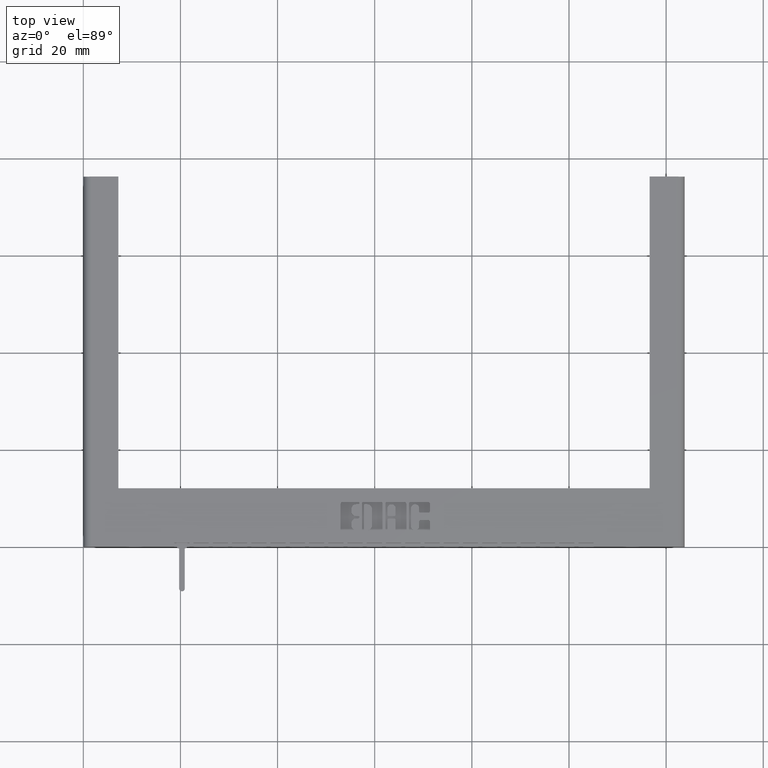
[diagram: clean part render]
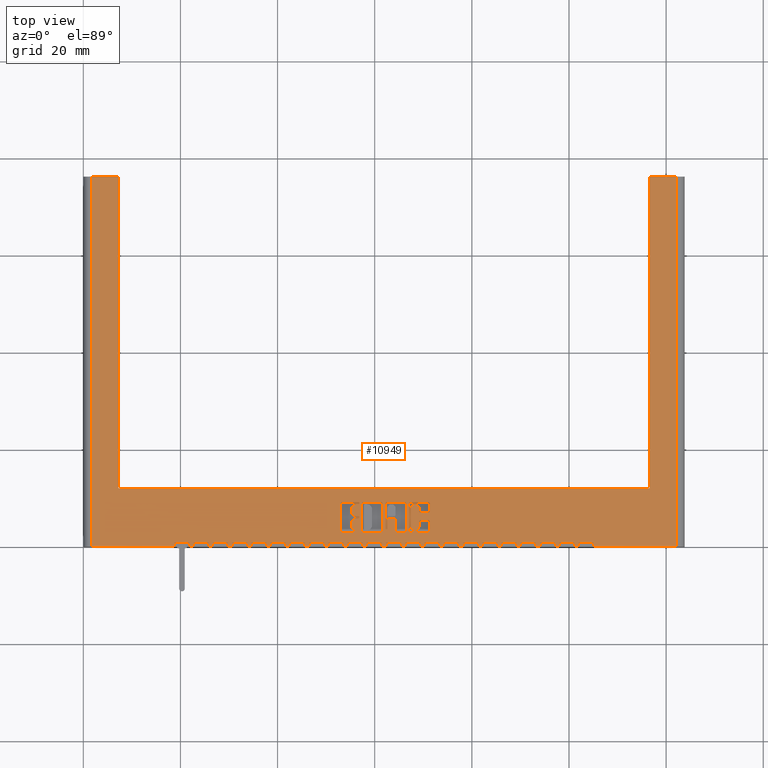
[diagram: same view with one face highlighted and labeled with its STEP entity id]
A machine part, top view. The second image highlights one B-rep face of the part: STEP entity #10949.
In plain terms, the highlighted planar face has unit normal (0, 0, 1).
Its self-contained STEP definition (entity closure, byte-faithful):
#29 = DIRECTION ( 'NONE',  ( -0.0000000000000000000, 0.0000000000000000000, 1.000000000000000000 ) ) ;
#35 = LINE ( 'NONE', #9418, #14310 ) ;
#55 = CARTESIAN_POINT ( 'NONE',  ( 2.212046325006407100, 0.3420184546909196300, 0.1715000000000000100 ) ) ;
#74 = VECTOR ( 'NONE', #10423, 39.37007874015748100 ) ;
#75 = EDGE_CURVE ( 'NONE', #21406, #18413, #10897, .T. ) ;
#95 = VECTOR ( 'NONE', #9603, 39.37007874015748100 ) ;
#130 = LINE ( 'NONE', #11611, #17219 ) ;
#145 = CARTESIAN_POINT ( 'NONE',  ( 2.639027978871823200, -0.3622500105949456600, 0.1715000000000000100 ) ) ;
#154 = CARTESIAN_POINT ( 'NONE',  ( 2.228917008169188900, 0.3591958775475408400, 0.1715000000000000100 ) ) ;
#171 = VERTEX_POINT ( 'NONE', #21702 ) ;
#188 = DIRECTION ( 'NONE',  ( 0.0000000000000000000, 1.000000000000000000, 0.0000000000000000000 ) ) ;
#193 = DIRECTION ( 'NONE',  ( -0.0000000000000000000, -1.000000000000000000, -0.0000000000000000000 ) ) ;
#204 = VERTEX_POINT ( 'NONE', #18708 ) ;
#212 = VERTEX_POINT ( 'NONE', #18463 ) ;
#240 = VERTEX_POINT ( 'NONE', #9030 ) ;
#243 = DIRECTION ( 'NONE',  ( -0.0000000000000000000, 0.0000000000000000000, 1.000000000000000000 ) ) ;
#276 = CARTESIAN_POINT ( 'NONE',  ( 1.485000000000000100, 0.03100000000000001700, 0.1715000000000000100 ) ) ;
#288 = VERTEX_POINT ( 'NONE', #11649 ) ;
#303 = ORIENTED_EDGE ( 'NONE', *, *, #19968, .F. ) ;
#319 = ORIENTED_EDGE ( 'NONE', *, *, #13579, .T. ) ;
#329 = CARTESIAN_POINT ( 'NONE',  ( 2.460505477040159300, 0.3591958775475083700, 0.1715000000000000100 ) ) ;
#332 = ORIENTED_EDGE ( 'NONE', *, *, #12566, .F. ) ;
#334 = CARTESIAN_POINT ( 'NONE',  ( 3.824999999999999700, 1.506315562951245400E-017, 0.1715000000000000100 ) ) ;
#336 = EDGE_CURVE ( 'NONE', #7547, #390, #10622, .T. ) ;
#353 = VERTEX_POINT ( 'NONE', #18027 ) ;
#357 = LINE ( 'NONE', #4333, #17938 ) ;
#358 = CARTESIAN_POINT ( 'NONE',  ( 4.590500000000000500, 0.4729999999999994200, 0.1715000000000000100 ) ) ;
#366 = VECTOR ( 'NONE', #7273, 39.37007874015748100 ) ;
#367 = VERTEX_POINT ( 'NONE', #12445 ) ;
#375 = CARTESIAN_POINT ( 'NONE',  ( 0.0000000000000000000, 0.0000000000000000000, 0.1715000000000000100 ) ) ;
#390 = VERTEX_POINT ( 'NONE', #13194 ) ;
#391 = EDGE_CURVE ( 'NONE', #1234, #19923, #17859, .T. ) ;
#400 = LINE ( 'NONE', #1176, #17967 ) ;
#402 = CARTESIAN_POINT ( 'NONE',  ( 2.651297566626624300, 0.3469262897927626900, 0.1715000000000000100 ) ) ;
#412 = VECTOR ( 'NONE', #6877, 39.37007874015748100 ) ;
#418 = ORIENTED_EDGE ( 'NONE', *, *, #15422, .F. ) ;
#423 = DIRECTION ( 'NONE',  ( 0.0000000000000000000, 1.000000000000000000, 0.0000000000000000000 ) ) ;
#424 = LINE ( 'NONE', #5323, #6720 ) ;
#438 = DIRECTION ( 'NONE',  ( 1.000000000000000000, 0.0000000000000000000, 0.0000000000000000000 ) ) ;
#455 = LINE ( 'NONE', #18945, #9180 ) ;
#470 = ORIENTED_EDGE ( 'NONE', *, *, #15055, .F. ) ;
#497 = CARTESIAN_POINT ( 'NONE',  ( 3.512999999999999900, 1.506315562951245400E-017, 0.1715000000000000100 ) ) ;
#557 = EDGE_CURVE ( 'NONE', #16941, #7547, #5255, .T. ) ;
#594 = VERTEX_POINT ( 'NONE', #9354 ) ;
#601 = AXIS2_PLACEMENT_3D ( 'NONE', #10464, #29, #12152 ) ;
#614 = AXIS2_PLACEMENT_3D ( 'NONE', #19300, #9403, #20933 ) ;
#617 = LINE ( 'NONE', #9325, #4785 ) ;
#634 = DIRECTION ( 'NONE',  ( 1.000000000000000000, 0.0000000000000000000, 0.0000000000000000000 ) ) ;
#646 = VERTEX_POINT ( 'NONE', #2130 ) ;
#664 = CARTESIAN_POINT ( 'NONE',  ( 0.0000000000000000000, 0.0000000000000000000, 0.1715000000000000100 ) ) ;
#712 = VECTOR ( 'NONE', #423, 39.37007874015748100 ) ;
#738 = DIRECTION ( 'NONE',  ( -0.0000000000000000000, -1.000000000000000000, -0.0000000000000000000 ) ) ;
#741 = FACE_OUTER_BOUND ( 'NONE', #19849, .T. ) ;
#743 = DIRECTION ( 'NONE',  ( 0.0000000000000000000, 1.000000000000000000, 0.0000000000000000000 ) ) ;
#775 = LINE ( 'NONE', #16697, #17788 ) ;
#849 = ORIENTED_EDGE ( 'NONE', *, *, #11535, .F. ) ;
#860 = VERTEX_POINT ( 'NONE', #18352 ) ;
#862 = CIRCLE ( 'NONE', #7527, 0.008588711428327820000 ) ;
#866 = ORIENTED_EDGE ( 'NONE', *, *, #21533, .T. ) ;
#886 = DIRECTION ( 'NONE',  ( 0.0000000000000000000, 1.000000000000000000, 0.0000000000000000000 ) ) ;
#919 = ORIENTED_EDGE ( 'NONE', *, *, #12138, .T. ) ;
#929 = CARTESIAN_POINT ( 'NONE',  ( 1.829999999999999800, 0.0000000000000000000, 0.1715000000000000100 ) ) ;
#957 = LINE ( 'NONE', #2267, #14094 ) ;
#963 = CARTESIAN_POINT ( 'NONE',  ( 1.796999999999999900, 0.03100000000000001700, 0.1715000000000000100 ) ) ;
#973 = EDGE_CURVE ( 'NONE', #1299, #9321, #5765, .T. ) ;
#982 = EDGE_CURVE ( 'NONE', #12809, #9581, #1117, .T. ) ;
#1016 = LINE ( 'NONE', #19146, #5144 ) ;
#1031 = CARTESIAN_POINT ( 'NONE',  ( 3.356999999999999800, 0.03100000000000001700, 0.1715000000000000100 ) ) ;
#1055 = ORIENTED_EDGE ( 'NONE', *, *, #3665, .T. ) ;
#1077 = VECTOR ( 'NONE', #17564, 39.37007874015748100 ) ;
#1090 = VECTOR ( 'NONE', #18878, 39.37007874015748100 ) ;
#1106 = VECTOR ( 'NONE', #15077, 39.37007874015748100 ) ;
#1117 = LINE ( 'NONE', #8173, #9792 ) ;
#1123 = EDGE_CURVE ( 'NONE', #12428, #19922, #16561, .T. ) ;
#1174 = CARTESIAN_POINT ( 'NONE',  ( 3.044999999999999900, 0.03100000000000001700, 0.1715000000000000100 ) ) ;
#1176 = CARTESIAN_POINT ( 'NONE',  ( 2.420999999999999800, 1.506315562951245400E-017, 0.1715000000000000100 ) ) ;
#1180 = CARTESIAN_POINT ( 'NONE',  ( 2.414494522959870400, 0.3591958775475638200, 0.1715000000000000100 ) ) ;
#1229 = DIRECTION ( 'NONE',  ( -1.000000000000000000, -1.388134143122084800E-016, 0.0000000000000000000 ) ) ;
#1234 = VERTEX_POINT ( 'NONE', #16877 ) ;
#1249 = VERTEX_POINT ( 'NONE', #20732 ) ;
#1259 = VERTEX_POINT ( 'NONE', #8994 ) ;
#1276 = CARTESIAN_POINT ( 'NONE',  ( 2.656205401728523300, 0.1638026925530662900, 0.1715000000000000100 ) ) ;
#1285 = LINE ( 'NONE', #334, #712 ) ;
#1299 = VERTEX_POINT ( 'NONE', #14629 ) ;
#1301 = CIRCLE ( 'NONE', #18535, 0.01226958775477842100 ) ;
#1357 = VECTOR ( 'NONE', #2621, 39.37007874015748100 ) ;
#1394 = VERTEX_POINT ( 'NONE', #6606 ) ;
#1407 = CARTESIAN_POINT ( 'NONE',  ( 2.888999999999999800, 0.03100000000000001700, 0.1715000000000000100 ) ) ;
#1413 = DIRECTION ( 'NONE',  ( 0.0000000000000000000, 1.000000000000000000, -0.0000000000000000000 ) ) ;
#1425 = EDGE_CURVE ( 'NONE', #20443, #288, #1658, .T. ) ;
#1472 = VECTOR ( 'NONE', #1229, 39.37007874015748100 ) ;
#1485 = CARTESIAN_POINT ( 'NONE',  ( 2.577000000000000000, 0.03100000000000001700, 0.1715000000000000100 ) ) ;
#1493 = CARTESIAN_POINT ( 'NONE',  ( 2.721847696216457300, 0.2849648716313065700, 0.1715000000000000100 ) ) ;
#1496 = CARTESIAN_POINT ( 'NONE',  ( 3.201000000000000100, 1.506315562951245400E-017, 0.1715000000000000100 ) ) ;
#1526 = VECTOR ( 'NONE', #16301, 39.37007874015748100 ) ;
#1564 = EDGE_CURVE ( 'NONE', #2165, #14974, #7587, .T. ) ;
#1599 = ORIENTED_EDGE ( 'NONE', *, *, #3946, .F. ) ;
#1603 = VERTEX_POINT ( 'NONE', #13561 ) ;
#1648 = ORIENTED_EDGE ( 'NONE', *, *, #11842, .F. ) ;
#1658 = LINE ( 'NONE', #10880, #1090 ) ;
#1666 = PLANE ( 'NONE',  #3253 ) ;
#1671 = VECTOR ( 'NONE', #16727, 39.37007874015748100 ) ;
#1743 = DIRECTION ( 'NONE',  ( 0.0000000000000000000, 1.000000000000000000, 0.0000000000000000000 ) ) ;
#1783 = ORIENTED_EDGE ( 'NONE', *, *, #982, .F. ) ;
#1787 = AXIS2_PLACEMENT_3D ( 'NONE', #11497, #11427, #11253 ) ;
#1792 = VERTEX_POINT ( 'NONE', #12099 ) ;
#1819 = CARTESIAN_POINT ( 'NONE',  ( 2.460505477040159300, 0.3469262897927626900, 0.1715000000000000100 ) ) ;
#1851 = VECTOR ( 'NONE', #2088, 39.37007874015748100 ) ;
#1863 = AXIS2_PLACEMENT_3D ( 'NONE', #16210, #6111, #17846 ) ;
#1893 = VECTOR ( 'NONE', #3114, 39.37007874015748100 ) ;
#1902 = CARTESIAN_POINT ( 'NONE',  ( 3.857999999999999700, 0.03100000000000000000, 0.1715000000000000100 ) ) ;
#1903 = EDGE_CURVE ( 'NONE', #13800, #10335, #4671, .T. ) ;
#1932 = AXIS2_PLACEMENT_3D ( 'NONE', #9742, #21255, #11441 ) ;
#1972 = LINE ( 'NONE', #21744, #18839 ) ;
#1977 = CARTESIAN_POINT ( 'NONE',  ( 2.796078702132668100, 0.1138041224524790600, 0.1715000000000000100 ) ) ;
#1992 = VECTOR ( 'NONE', #12521, 39.37007874015748100 ) ;
#2040 = DIRECTION ( 'NONE',  ( 1.000000000000000000, 0.0000000000000000000, 0.0000000000000000000 ) ) ;
#2048 = CARTESIAN_POINT ( 'NONE',  ( 3.668999999999999600, 0.03100000000000001700, 0.1715000000000000100 ) ) ;
#2052 = ORIENTED_EDGE ( 'NONE', *, *, #19910, .F. ) ;
#2055 = LINE ( 'NONE', #375, #15118 ) ;
#2069 = EDGE_CURVE ( 'NONE', #860, #19240, #18776, .T. ) ;
#2088 = DIRECTION ( 'NONE',  ( -0.0000000000000000000, -1.000000000000000000, -0.0000000000000000000 ) ) ;
#2130 = CARTESIAN_POINT ( 'NONE',  ( 2.141999999999999900, 0.03100000000000000000, 0.1715000000000000100 ) ) ;
#2162 = VERTEX_POINT ( 'NONE', #20171 ) ;
#2165 = VERTEX_POINT ( 'NONE', #14312 ) ;
#2190 = CARTESIAN_POINT ( 'NONE',  ( 2.420999999999999800, 0.03100000000000001700, 0.1715000000000000100 ) ) ;
#2202 = CARTESIAN_POINT ( 'NONE',  ( 2.609999999999999900, 0.03100000000000000000, 0.1715000000000000100 ) ) ;
#2212 = VECTOR ( 'NONE', #13354, 39.37007874015748100 ) ;
#2215 = EDGE_CURVE ( 'NONE', #9581, #21482, #11858, .T. ) ;
#2231 = VECTOR ( 'NONE', #17120, 39.37007874015748100 ) ;
#2239 = DIRECTION ( 'NONE',  ( 1.000000000000000000, 0.0000000000000000000, 0.0000000000000000000 ) ) ;
#2258 = CARTESIAN_POINT ( 'NONE',  ( 2.447315670203804600, 0.3591958775475638200, 0.1715000000000000100 ) ) ;
#2264 = CARTESIAN_POINT ( 'NONE',  ( 2.518786018875234700, 0.2156417008169410300, 0.1715000000000000100 ) ) ;
#2267 = CARTESIAN_POINT ( 'NONE',  ( 1.361999999999999900, 0.0000000000000000000, 0.1715000000000000100 ) ) ;
#2270 = VERTEX_POINT ( 'NONE', #10409 ) ;
#2284 = DIRECTION ( 'NONE',  ( 1.000000000000000000, 0.0000000000000000000, 0.0000000000000000000 ) ) ;
#2310 = AXIS2_PLACEMENT_3D ( 'NONE', #4626, #16402, #6321 ) ;
#2355 = DIRECTION ( 'NONE',  ( 1.000000000000000000, 0.0000000000000000000, 0.0000000000000000000 ) ) ;
#2359 = ORIENTED_EDGE ( 'NONE', *, *, #17937, .F. ) ;
#2371 = VECTOR ( 'NONE', #16715, 39.37007874015748100 ) ;
#2422 = ORIENTED_EDGE ( 'NONE', *, *, #2889, .F. ) ;
#2457 = EDGE_CURVE ( 'NONE', #3410, #13288, #19789, .T. ) ;
#2458 = CARTESIAN_POINT ( 'NONE',  ( 2.447315670203804600, 0.3591958775475083700, 0.1715000000000000100 ) ) ;
#2460 = CARTESIAN_POINT ( 'NONE',  ( 0.0000000000000000000, 0.0000000000000000000, 0.1715000000000000100 ) ) ;
#2486 = DIRECTION ( 'NONE',  ( 1.000000000000000000, 0.0000000000000000000, 0.0000000000000000000 ) ) ;
#2495 = LINE ( 'NONE', #13844, #15505 ) ;
#2503 = VERTEX_POINT ( 'NONE', #11506 ) ;
#2534 = LINE ( 'NONE', #21678, #7088 ) ;
#2537 = CARTESIAN_POINT ( 'NONE',  ( 2.796078702132708900, 0.2726952838765420700, 0.1715000000000000100 ) ) ;
#2575 = DIRECTION ( 'NONE',  ( 0.0000000000000000000, -1.000000000000000000, 0.0000000000000000000 ) ) ;
#2621 = DIRECTION ( 'NONE',  ( -1.000000000000000000, -1.388134143122084800E-016, 0.0000000000000000000 ) ) ;
#2651 = DIRECTION ( 'NONE',  ( 1.000000000000000000, 0.0000000000000000000, 0.0000000000000000000 ) ) ;
#2659 = LINE ( 'NONE', #14557, #11786 ) ;
#2690 = DIRECTION ( 'NONE',  ( -1.000000000000000000, -1.388134143122084800E-016, 0.0000000000000000000 ) ) ;
#2693 = CARTESIAN_POINT ( 'NONE',  ( 2.426764110714586300, 0.3469262897927625200, 0.1715000000000000100 ) ) ;
#2696 = CARTESIAN_POINT ( 'NONE',  ( 0.0000000000000000000, 0.0000000000000000000, 0.1715000000000000100 ) ) ;
#2730 = VERTEX_POINT ( 'NONE', #8680 ) ;
#2759 = EDGE_CURVE ( 'NONE', #10647, #16113, #21804, .T. ) ;
#2775 = DIRECTION ( 'NONE',  ( 0.0000000000000000000, 1.000000000000000000, 0.0000000000000000000 ) ) ;
#2785 = EDGE_CURVE ( 'NONE', #18293, #5915, #8635, .T. ) ;
#2799 = EDGE_CURVE ( 'NONE', #19181, #2270, #5666, .T. ) ;
#2868 = VERTEX_POINT ( 'NONE', #10676 ) ;
#2889 = EDGE_CURVE ( 'NONE', #5353, #9584, #20784, .T. ) ;
#2894 = CARTESIAN_POINT ( 'NONE',  ( 3.702000000000000000, 0.03100000000000000000, 0.1715000000000000100 ) ) ;
#2895 = ORIENTED_EDGE ( 'NONE', *, *, #2759, .F. ) ;
#2896 = VECTOR ( 'NONE', #4563, 39.37007874015748100 ) ;
#2911 = EDGE_CURVE ( 'NONE', #4936, #14982, #1285, .T. ) ;
#2969 = DIRECTION ( 'NONE',  ( 0.0000000000000000000, 1.000000000000000000, 0.0000000000000000000 ) ) ;
#3006 = CARTESIAN_POINT ( 'NONE',  ( 2.448235889285413700, 0.3469262897927626900, 0.1715000000000000100 ) ) ;
#3018 = ORIENTED_EDGE ( 'NONE', *, *, #5924, .F. ) ;
#3041 = CARTESIAN_POINT ( 'NONE',  ( 1.953000000000000100, 1.506315562951245400E-017, 0.1715000000000000100 ) ) ;
#3043 = CIRCLE ( 'NONE', #614, 0.01226958775474536500 ) ;
#3044 = LINE ( 'NONE', #145, #10560 ) ;
#3048 = CARTESIAN_POINT ( 'NONE',  ( 2.265000000000000100, 1.506315562951245400E-017, 0.1715000000000000100 ) ) ;
#3063 = DIRECTION ( 'NONE',  ( 0.0000000000000000000, 1.000000000000000000, 0.0000000000000000000 ) ) ;
#3067 = EDGE_CURVE ( 'NONE', #13942, #16220, #3227, .T. ) ;
#3068 = LINE ( 'NONE', #12740, #7620 ) ;
#3069 = ORIENTED_EDGE ( 'NONE', *, *, #11982, .F. ) ;
#3070 = CARTESIAN_POINT ( 'NONE',  ( 1.796999999999999900, 1.506315562951245400E-017, 0.1715000000000000100 ) ) ;
#3076 = DIRECTION ( 'NONE',  ( 1.000000000000000000, 0.0000000000000000000, 0.0000000000000000000 ) ) ;
#3087 = ORIENTED_EDGE ( 'NONE', *, *, #10526, .F. ) ;
#3089 = EDGE_CURVE ( 'NONE', #20619, #14205, #16212, .T. ) ;
#3100 = CARTESIAN_POINT ( 'NONE',  ( 1.518000000000000000, 0.0000000000000000000, 0.1715000000000000100 ) ) ;
#3108 = VERTEX_POINT ( 'NONE', #16197 ) ;
#3114 = DIRECTION ( 'NONE',  ( -0.0000000000000000000, -1.000000000000000000, -0.0000000000000000000 ) ) ;
#3119 = CARTESIAN_POINT ( 'NONE',  ( 2.577000000000000000, 1.506315562951245400E-017, 0.1715000000000000100 ) ) ;
#3121 = DIRECTION ( 'NONE',  ( -0.0000000000000000000, -1.000000000000000000, -0.0000000000000000000 ) ) ;
#3135 = LINE ( 'NONE', #11418, #15590 ) ;
#3146 = AXIS2_PLACEMENT_3D ( 'NONE', #1819, #13798, #3601 ) ;
#3161 = VERTEX_POINT ( 'NONE', #14762 ) ;
#3220 = CARTESIAN_POINT ( 'NONE',  ( 3.824999999999999700, 0.03100000000000001700, 0.1715000000000000100 ) ) ;
#3227 = LINE ( 'NONE', #4317, #7221 ) ;
#3253 = AXIS2_PLACEMENT_3D ( 'NONE', #5184, #8633, #20208 ) ;
#3273 = ORIENTED_EDGE ( 'NONE', *, *, #18942, .F. ) ;
#3283 = VECTOR ( 'NONE', #16067, 39.37007874015748100 ) ;
#3308 = VECTOR ( 'NONE', #19771, 39.37007874015748100 ) ;
#3368 = VERTEX_POINT ( 'NONE', #8503 ) ;
#3383 = CARTESIAN_POINT ( 'NONE',  ( 2.212046325006355100, 0.2843513922435729800, 0.1715000000000000100 ) ) ;
#3393 = VERTEX_POINT ( 'NONE', #10292 ) ;
#3394 = EDGE_CURVE ( 'NONE', #20020, #18338, #13371, .T. ) ;
#3406 = CARTESIAN_POINT ( 'NONE',  ( 0.2844999999999999200, 3.000000000000000400, 0.1715000000000000100 ) ) ;
#3410 = VERTEX_POINT ( 'NONE', #5203 ) ;
#3416 = ORIENTED_EDGE ( 'NONE', *, *, #18517, .F. ) ;
#3433 = ORIENTED_EDGE ( 'NONE', *, *, #21787, .F. ) ;
#3470 = ORIENTED_EDGE ( 'NONE', *, *, #10598, .T. ) ;
#3471 = EDGE_CURVE ( 'NONE', #1234, #8802, #7761, .T. ) ;
#3514 = CARTESIAN_POINT ( 'NONE',  ( 2.212046325006387100, 0.1702442261243630200, 0.1715000000000000100 ) ) ;
#3575 = ORIENTED_EDGE ( 'NONE', *, *, #9498, .F. ) ;
#3601 = DIRECTION ( 'NONE',  ( 1.000000000000000000, 0.0000000000000000000, 0.0000000000000000000 ) ) ;
#3631 = CARTESIAN_POINT ( 'NONE',  ( 2.257443799698961600, -0.3622500105949456600, 0.1715000000000000100 ) ) ;
#3641 = VECTOR ( 'NONE', #8349, 39.37007874015748100 ) ;
#3662 = CARTESIAN_POINT ( 'NONE',  ( 2.269713387453762700, 0.3469262897927626900, 0.1715000000000000100 ) ) ;
#3665 = EDGE_CURVE ( 'NONE', #8765, #18667, #21759, .T. ) ;
#3694 = ORIENTED_EDGE ( 'NONE', *, *, #12359, .F. ) ;
#3702 = CARTESIAN_POINT ( 'NONE',  ( 2.617556200301008700, -0.3622500105949456600, 0.1715000000000000100 ) ) ;
#3705 = CARTESIAN_POINT ( 'NONE',  ( 2.086283050520144400, -0.3622500105949456600, 0.1715000000000000100 ) ) ;
#3715 = CARTESIAN_POINT ( 'NONE',  ( 2.796078702132691200, 0.2009181955112130900, 0.1715000000000000100 ) ) ;
#3744 = CARTESIAN_POINT ( 'NONE',  ( 1.829999999999999800, 0.0000000000000000000, 0.1715000000000000100 ) ) ;
#3787 = CARTESIAN_POINT ( 'NONE',  ( 1.485000000000000100, 0.03100000000000001700, 0.1715000000000000100 ) ) ;
#3807 = CARTESIAN_POINT ( 'NONE',  ( 2.172783644191159900, -0.3622500105949456600, 0.1715000000000000100 ) ) ;
#3809 = AXIS2_PLACEMENT_3D ( 'NONE', #8738, #20305, #10447 ) ;
#3824 = ORIENTED_EDGE ( 'NONE', *, *, #5225, .F. ) ;
#3829 = VECTOR ( 'NONE', #11024, 39.37007874015748100 ) ;
#3843 = DIRECTION ( 'NONE',  ( -1.000000000000000000, -1.388134143122084800E-016, 0.0000000000000000000 ) ) ;
#3854 = VECTOR ( 'NONE', #6495, 39.37007874015748100 ) ;
#3872 = DIRECTION ( 'NONE',  ( -0.0000000000000000000, 0.0000000000000000000, 1.000000000000000000 ) ) ;
#3878 = ORIENTED_EDGE ( 'NONE', *, *, #12830, .T. ) ;
#3883 = ORIENTED_EDGE ( 'NONE', *, *, #13142, .F. ) ;
#3884 = VECTOR ( 'NONE', #17534, 39.37007874015748100 ) ;
#3920 = CARTESIAN_POINT ( 'NONE',  ( 2.605286612546267500, 0.3591958775475083700, 0.1715000000000000100 ) ) ;
#3923 = VERTEX_POINT ( 'NONE', #10196 ) ;
#3936 = ORIENTED_EDGE ( 'NONE', *, *, #14459, .F. ) ;
#3946 = EDGE_CURVE ( 'NONE', #6660, #8089, #6668, .T. ) ;
#3953 = CARTESIAN_POINT ( 'NONE',  ( 3.512999999999999900, 0.03100000000000001700, 0.1715000000000000100 ) ) ;
#3970 = VERTEX_POINT ( 'NONE', #17089 ) ;
#3971 = CARTESIAN_POINT ( 'NONE',  ( 2.228917008169169400, 0.1223928338808099900, 0.1715000000000000100 ) ) ;
#4015 = DIRECTION ( 'NONE',  ( 1.000000000000000000, 0.0000000000000000000, 0.0000000000000000000 ) ) ;
#4017 = VECTOR ( 'NONE', #4221, 39.37007874015748100 ) ;
#4041 = ORIENTED_EDGE ( 'NONE', *, *, #17731, .F. ) ;
#4070 = CARTESIAN_POINT ( 'NONE',  ( 2.733000000000000100, 0.03100000000000001700, 0.1715000000000000100 ) ) ;
#4101 = ORIENTED_EDGE ( 'NONE', *, *, #17209, .T. ) ;
#4156 = VECTOR ( 'NONE', #11393, 39.37007874015748100 ) ;
#4161 = ORIENTED_EDGE ( 'NONE', *, *, #13868, .T. ) ;
#4170 = ORIENTED_EDGE ( 'NONE', *, *, #6780, .T. ) ;
#4186 = CARTESIAN_POINT ( 'NONE',  ( 2.420999999999999800, 0.03100000000000001700, 0.1715000000000000100 ) ) ;
#4189 = ORIENTED_EDGE ( 'NONE', *, *, #7074, .F. ) ;
#4199 = VECTOR ( 'NONE', #4992, 39.37007874015748100 ) ;
#4205 = LINE ( 'NONE', #18638, #12741 ) ;
#4211 = CARTESIAN_POINT ( 'NONE',  ( 2.265000000000000100, 0.03100000000000001700, 0.1715000000000000100 ) ) ;
#4221 = DIRECTION ( 'NONE',  ( 0.0000000000000000000, -1.000000000000000000, 0.0000000000000000000 ) ) ;
#4250 = VERTEX_POINT ( 'NONE', #19476 ) ;
#4254 = LINE ( 'NONE', #13353, #12790 ) ;
#4317 = CARTESIAN_POINT ( 'NONE',  ( 1.050000000000000000, 0.0000000000000000000, 0.1715000000000000100 ) ) ;
#4331 = VECTOR ( 'NONE', #8162, 39.37007874015748100 ) ;
#4333 = CARTESIAN_POINT ( 'NONE',  ( 4.014000000000000200, 0.0000000000000000000, 0.1715000000000000100 ) ) ;
#4356 = CARTESIAN_POINT ( 'NONE',  ( 2.228917008169169400, 0.1223928338808099900, 0.1715000000000000100 ) ) ;
#4365 = VECTOR ( 'NONE', #10222, 39.37007874015748100 ) ;
#4375 = ORIENTED_EDGE ( 'NONE', *, *, #3089, .F. ) ;
#4422 = VECTOR ( 'NONE', #15703, 39.37007874015748100 ) ;
#4433 = VERTEX_POINT ( 'NONE', #14990 ) ;
#4454 = EDGE_CURVE ( 'NONE', #860, #5330, #9077, .T. ) ;
#4483 = DIRECTION ( 'NONE',  ( -0.0000000000000000000, 0.0000000000000000000, 1.000000000000000000 ) ) ;
#4538 = DIRECTION ( 'NONE',  ( 1.000000000000000000, 0.0000000000000000000, 0.0000000000000000000 ) ) ;
#4563 = DIRECTION ( 'NONE',  ( 0.0000000000000000000, 1.000000000000000000, 0.0000000000000000000 ) ) ;
#4570 = LINE ( 'NONE', #4186, #17428 ) ;
#4598 = VERTEX_POINT ( 'NONE', #8752 ) ;
#4623 = VECTOR ( 'NONE', #14137, 39.37007874015748100 ) ;
#4626 = CARTESIAN_POINT ( 'NONE',  ( 2.543325194384734800, 0.1260737102072348500, 0.1715000000000000100 ) ) ;
#4663 = VECTOR ( 'NONE', #15464, 39.37007874015748100 ) ;
#4671 = CIRCLE ( 'NONE', #5452, 0.03926268081519532900 ) ;
#4682 = EDGE_CURVE ( 'NONE', #16113, #6062, #9638, .T. ) ;
#4714 = EDGE_CURVE ( 'NONE', #17341, #5739, #21740, .T. ) ;
#4737 = LINE ( 'NONE', #14894, #13254 ) ;
#4755 = CARTESIAN_POINT ( 'NONE',  ( 2.141999999999999900, 0.0000000000000000000, 0.1715000000000000100 ) ) ;
#4785 = VECTOR ( 'NONE', #16041, 39.37007874015748100 ) ;
#4817 = DIRECTION ( 'NONE',  ( -1.000000000000000000, 0.0000000000000000000, 0.0000000000000000000 ) ) ;
#4818 = EDGE_CURVE ( 'NONE', #5915, #8033, #17866, .T. ) ;
#4822 = ORIENTED_EDGE ( 'NONE', *, *, #20789, .F. ) ;
#4836 = CARTESIAN_POINT ( 'NONE',  ( 1.206000000000000000, 0.0000000000000000000, 0.1715000000000000100 ) ) ;
#4839 = CARTESIAN_POINT ( 'NONE',  ( 1.673999999999999900, 0.03100000000000000000, 0.1715000000000000100 ) ) ;
#4865 = VECTOR ( 'NONE', #18154, 39.37007874015748100 ) ;
#4878 = DIRECTION ( 'NONE',  ( -1.000000000000000000, -1.388134143122084800E-016, 0.0000000000000000000 ) ) ;
#4890 = CARTESIAN_POINT ( 'NONE',  ( 2.477682899896812300, 0.2156417008169320400, 0.1715000000000000100 ) ) ;
#4931 = ORIENTED_EDGE ( 'NONE', *, *, #17902, .T. ) ;
#4933 = CARTESIAN_POINT ( 'NONE',  ( 3.824999999999999700, 0.03100000000000001700, 0.1715000000000000100 ) ) ;
#4936 = VERTEX_POINT ( 'NONE', #16347 ) ;
#4992 = DIRECTION ( 'NONE',  ( 0.0000000000000000000, 1.000000000000000000, 0.0000000000000000000 ) ) ;
#5033 = DIRECTION ( 'NONE',  ( 1.000000000000000000, 0.0000000000000000000, 0.0000000000000000000 ) ) ;
#5034 = VERTEX_POINT ( 'NONE', #19814 ) ;
#5036 = LINE ( 'NONE', #11614, #13037 ) ;
#5067 = VERTEX_POINT ( 'NONE', #4839 ) ;
#5077 = CARTESIAN_POINT ( 'NONE',  ( 2.922000000000000200, 0.0000000000000000000, 0.1715000000000000100 ) ) ;
#5116 = DIRECTION ( 'NONE',  ( 1.000000000000000000, 0.0000000000000000000, 0.0000000000000000000 ) ) ;
#5144 = VECTOR ( 'NONE', #15961, 39.37007874015748100 ) ;
#5160 = ORIENTED_EDGE ( 'NONE', *, *, #17191, .T. ) ;
#5166 = LINE ( 'NONE', #2258, #8650 ) ;
#5167 = DIRECTION ( 'NONE',  ( -1.000000000000000000, 0.0000000000000000000, 0.0000000000000000000 ) ) ;
#5184 = CARTESIAN_POINT ( 'NONE',  ( 0.0000000000000000000, 0.0000000000000000000, 0.1715000000000000100 ) ) ;
#5203 = CARTESIAN_POINT ( 'NONE',  ( 2.922000000000000200, 0.03100000000000000000, 0.1715000000000000100 ) ) ;
#5225 = EDGE_CURVE ( 'NONE', #2730, #11634, #5499, .T. ) ;
#5253 = DIRECTION ( 'NONE',  ( 1.000000000000000000, 0.0000000000000000000, 0.0000000000000000000 ) ) ;
#5255 = LINE ( 'NONE', #12088, #18101 ) ;
#5272 = VERTEX_POINT ( 'NONE', #154 ) ;
#5278 = CARTESIAN_POINT ( 'NONE',  ( 2.447315670203804600, 0.1138041224524790600, 0.1715000000000000100 ) ) ;
#5279 = AXIS2_PLACEMENT_3D ( 'NONE', #402, #12504, #2239 ) ;
#5323 = CARTESIAN_POINT ( 'NONE',  ( 2.447315670203784200, 0.2279112885716847400, 0.1715000000000000100 ) ) ;
#5327 = DIRECTION ( 'NONE',  ( 1.000000000000000000, 0.0000000000000000000, 0.0000000000000000000 ) ) ;
#5330 = VERTEX_POINT ( 'NONE', #3920 ) ;
#5337 = ORIENTED_EDGE ( 'NONE', *, *, #10892, .T. ) ;
#5339 = CARTESIAN_POINT ( 'NONE',  ( 2.888999999999999800, 1.506315562951245400E-017, 0.1715000000000000100 ) ) ;
#5347 = LINE ( 'NONE', #17874, #95 ) ;
#5353 = VERTEX_POINT ( 'NONE', #10809 ) ;
#5377 = DIRECTION ( 'NONE',  ( 1.000000000000000000, 0.0000000000000000000, 0.0000000000000000000 ) ) ;
#5381 = LINE ( 'NONE', #4755, #4865 ) ;
#5398 = ORIENTED_EDGE ( 'NONE', *, *, #19525, .F. ) ;
#5441 = DIRECTION ( 'NONE',  ( 1.000000000000000000, 0.0000000000000000000, 0.0000000000000000000 ) ) ;
#5452 = AXIS2_PLACEMENT_3D ( 'NONE', #13176, #18305, #2651 ) ;
#5453 = LINE ( 'NONE', #2048, #18298 ) ;
#5497 = EDGE_CURVE ( 'NONE', #240, #594, #3068, .T. ) ;
#5499 = LINE ( 'NONE', #5278, #21642 ) ;
#5508 = VERTEX_POINT ( 'NONE', #20934 ) ;
#5526 = EDGE_CURVE ( 'NONE', #12419, #3368, #6551, .T. ) ;
#5543 = EDGE_CURVE ( 'NONE', #16457, #5909, #19338, .T. ) ;
#5570 = CARTESIAN_POINT ( 'NONE',  ( 1.518000000000000000, 0.0000000000000000000, 0.1715000000000000100 ) ) ;
#5643 = CARTESIAN_POINT ( 'NONE',  ( 2.617556200301008700, 0.1260737102072260800, 0.1715000000000000100 ) ) ;
#5644 = CARTESIAN_POINT ( 'NONE',  ( 0.06400000000000125000, 2.999999999999999600, 0.1715000000000000100 ) ) ;
#5666 = LINE ( 'NONE', #3705, #12072 ) ;
#5687 = DIRECTION ( 'NONE',  ( 1.000000000000000000, 0.0000000000000000000, 0.0000000000000000000 ) ) ;
#5726 = AXIS2_PLACEMENT_3D ( 'NONE', #3514, #15360, #5253 ) ;
#5739 = VERTEX_POINT ( 'NONE', #10068 ) ;
#5751 = ORIENTED_EDGE ( 'NONE', *, *, #2799, .F. ) ;
#5761 = CARTESIAN_POINT ( 'NONE',  ( 0.0000000000000000000, 0.0000000000000000000, 0.1715000000000000100 ) ) ;
#5765 = LINE ( 'NONE', #8316, #18582 ) ;
#5786 = AXIS2_PLACEMENT_3D ( 'NONE', #8781, #20356, #10501 ) ;
#5819 = VERTEX_POINT ( 'NONE', #11923 ) ;
#5870 = CARTESIAN_POINT ( 'NONE',  ( 0.0000000000000000000, 0.0000000000000000000, 0.1715000000000000100 ) ) ;
#5874 = CARTESIAN_POINT ( 'NONE',  ( 3.857999999999999700, 0.0000000000000000000, 0.1715000000000000100 ) ) ;
#5879 = DIRECTION ( 'NONE',  ( -1.000000000000000000, -1.388134143122084800E-016, 0.0000000000000000000 ) ) ;
#5909 = VERTEX_POINT ( 'NONE', #8786 ) ;
#5915 = VERTEX_POINT ( 'NONE', #1902 ) ;
#5924 = EDGE_CURVE ( 'NONE', #8624, #17457, #3044, .T. ) ;
#5957 = EDGE_CURVE ( 'NONE', #1394, #11204, #5453, .T. ) ;
#5997 = DIRECTION ( 'NONE',  ( -1.000000000000000000, -1.388134143122084800E-016, 0.0000000000000000000 ) ) ;
#6002 = ORIENTED_EDGE ( 'NONE', *, *, #12700, .T. ) ;
#6034 = LINE ( 'NONE', #8937, #18829 ) ;
#6043 = DIRECTION ( 'NONE',  ( -0.0000000000000000000, -1.000000000000000000, -0.0000000000000000000 ) ) ;
#6062 = VERTEX_POINT ( 'NONE', #14292 ) ;
#6068 = DIRECTION ( 'NONE',  ( 1.000000000000000000, 0.0000000000000000000, 0.0000000000000000000 ) ) ;
#6089 = CARTESIAN_POINT ( 'NONE',  ( 3.545999999999999800, 0.03100000000000000000, 0.1715000000000000100 ) ) ;
#6096 = VERTEX_POINT ( 'NONE', #20919 ) ;
#6111 = DIRECTION ( 'NONE',  ( -0.0000000000000000000, 0.0000000000000000000, 1.000000000000000000 ) ) ;
#6117 = ORIENTED_EDGE ( 'NONE', *, *, #20466, .F. ) ;
#6130 = CIRCLE ( 'NONE', #5726, 0.03926268081522729700 ) ;
#6196 = DIRECTION ( 'NONE',  ( -0.0000000000000000000, -1.000000000000000000, -0.0000000000000000000 ) ) ;
#6201 = VERTEX_POINT ( 'NONE', #11382 ) ;
#6218 = VERTEX_POINT ( 'NONE', #16377 ) ;
#6246 = EDGE_CURVE ( 'NONE', #1603, #18293, #9528, .T. ) ;
#6257 = VERTEX_POINT ( 'NONE', #2894 ) ;
#6260 = LINE ( 'NONE', #19113, #19058 ) ;
#6307 = EDGE_LOOP ( 'NONE', ( #14840, #18142, #3416, #11450, #303, #17606, #19641, #7647, #7398, #10079, #6002, #11629, #1648, #15289, #7627, #13976, #5751, #14226, #20406, #21156, #9024 ) ) ;
#6321 = DIRECTION ( 'NONE',  ( 1.000000000000000000, 0.0000000000000000000, 0.0000000000000000000 ) ) ;
#6358 = DIRECTION ( 'NONE',  ( 0.0000000000000000000, 1.000000000000000000, 0.0000000000000000000 ) ) ;
#6363 = CIRCLE ( 'NONE', #20354, 0.01226958775474591200 ) ;
#6381 = EDGE_CURVE ( 'NONE', #6586, #8862, #20112, .T. ) ;
#6387 = EDGE_CURVE ( 'NONE', #20987, #17735, #19078, .T. ) ;
#6416 = CARTESIAN_POINT ( 'NONE',  ( 2.098552638274902900, 0.1260737102072375100, 0.1715000000000000100 ) ) ;
#6424 = CARTESIAN_POINT ( 'NONE',  ( 1.485000000000000100, 1.506315562951245400E-017, 0.1715000000000000100 ) ) ;
#6440 = ORIENTED_EDGE ( 'NONE', *, *, #9845, .F. ) ;
#6468 = VERTEX_POINT ( 'NONE', #16938 ) ;
#6485 = LINE ( 'NONE', #16806, #10515 ) ;
#6495 = DIRECTION ( 'NONE',  ( 0.0000000000000000000, 1.000000000000000000, 0.0000000000000000000 ) ) ;
#6510 = VECTOR ( 'NONE', #188, 39.37007874015748100 ) ;
#6516 = CARTESIAN_POINT ( 'NONE',  ( 3.390000000000000100, 0.0000000000000000000, 0.1715000000000000100 ) ) ;
#6518 = VECTOR ( 'NONE', #15635, 39.37007874015748100 ) ;
#6535 = EDGE_CURVE ( 'NONE', #20734, #13207, #11103, .T. ) ;
#6536 = VECTOR ( 'NONE', #12170, 39.37007874015748100 ) ;
#6547 = ORIENTED_EDGE ( 'NONE', *, *, #8239, .F. ) ;
#6548 = EDGE_CURVE ( 'NONE', #3108, #9067, #2495, .T. ) ;
#6551 = CIRCLE ( 'NONE', #13359, 0.008588711428310609800 ) ;
#6559 = VERTEX_POINT ( 'NONE', #7073 ) ;
#6583 = LINE ( 'NONE', #10636, #7100 ) ;
#6586 = VERTEX_POINT ( 'NONE', #17206 ) ;
#6593 = DIRECTION ( 'NONE',  ( 1.000000000000000000, 0.0000000000000000000, 0.0000000000000000000 ) ) ;
#6594 = CARTESIAN_POINT ( 'NONE',  ( 1.986000000000000000, 0.0000000000000000000, 0.1715000000000000100 ) ) ;
#6606 = CARTESIAN_POINT ( 'NONE',  ( 3.668999999999999600, 0.03100000000000001700, 0.1715000000000000100 ) ) ;
#6626 = AXIS2_PLACEMENT_3D ( 'NONE', #20050, #10172, #21672 ) ;
#6638 = EDGE_CURVE ( 'NONE', #9224, #13884, #17810, .T. ) ;
#6641 = CARTESIAN_POINT ( 'NONE',  ( 0.2844999999999999200, 3.000000000000000400, 0.1715000000000000100 ) ) ;
#6643 = CIRCLE ( 'NONE', #3809, 0.008588711428310609800 ) ;
#6660 = VERTEX_POINT ( 'NONE', #2202 ) ;
#6668 = LINE ( 'NONE', #12033, #19453 ) ;
#6683 = VERTEX_POINT ( 'NONE', #15851 ) ;
#6720 = VECTOR ( 'NONE', #15442, 39.37007874015748100 ) ;
#6734 = CARTESIAN_POINT ( 'NONE',  ( 1.206000000000000000, 0.0000000000000000000, 0.1715000000000000100 ) ) ;
#6766 = ORIENTED_EDGE ( 'NONE', *, *, #18425, .T. ) ;
#6780 = EDGE_CURVE ( 'NONE', #13018, #390, #6260, .T. ) ;
#6807 = EDGE_CURVE ( 'NONE', #9321, #5819, #14731, .T. ) ;
#6874 = DIRECTION ( 'NONE',  ( -0.0000000000000000000, 0.0000000000000000000, 1.000000000000000000 ) ) ;
#6877 = DIRECTION ( 'NONE',  ( -1.000000000000000000, 0.0000000000000000000, 0.0000000000000000000 ) ) ;
#6888 = VERTEX_POINT ( 'NONE', #9499 ) ;
#6893 = VERTEX_POINT ( 'NONE', #16138 ) ;
#6898 = EDGE_CURVE ( 'NONE', #1792, #11767, #17037, .T. ) ;
#6908 = ORIENTED_EDGE ( 'NONE', *, *, #17756, .F. ) ;
#6924 = CARTESIAN_POINT ( 'NONE',  ( 1.050000000000000000, 0.03100000000000000000, 0.1715000000000000100 ) ) ;
#6933 = ORIENTED_EDGE ( 'NONE', *, *, #13795, .T. ) ;
#6936 = VECTOR ( 'NONE', #16639, 39.37007874015748100 ) ;
#6985 = CARTESIAN_POINT ( 'NONE',  ( 3.980999999999999400, 0.03100000000000001700, 0.1715000000000000100 ) ) ;
#6993 = VERTEX_POINT ( 'NONE', #13190 ) ;
#6999 = CARTESIAN_POINT ( 'NONE',  ( 0.0000000000000000000, 0.0000000000000000000, 0.1715000000000000100 ) ) ;
#7056 = DIRECTION ( 'NONE',  ( -1.000000000000000000, -1.388134143122084800E-016, 0.0000000000000000000 ) ) ;
#7073 = CARTESIAN_POINT ( 'NONE',  ( 1.986000000000000000, 0.03100000000000000000, 0.1715000000000000100 ) ) ;
#7074 = EDGE_CURVE ( 'NONE', #6218, #3161, #775, .T. ) ;
#7088 = VECTOR ( 'NONE', #11892, 39.37007874015748100 ) ;
#7100 = VECTOR ( 'NONE', #2040, 39.37007874015748100 ) ;
#7104 = CARTESIAN_POINT ( 'NONE',  ( 2.689026548972490300, 0.3091973074469120400, 0.1715000000000000100 ) ) ;
#7148 = CARTESIAN_POINT ( 'NONE',  ( 2.639027978871823200, 0.3469262897927626900, 0.1715000000000000100 ) ) ;
#7154 = DIRECTION ( 'NONE',  ( 0.0000000000000000000, 1.000000000000000000, -0.0000000000000000000 ) ) ;
#7205 = CARTESIAN_POINT ( 'NONE',  ( 1.640999999999999800, 1.506315562951245400E-017, 0.1715000000000000100 ) ) ;
#7215 = CARTESIAN_POINT ( 'NONE',  ( 3.356999999999999800, 1.506315562951245400E-017, 0.1715000000000000100 ) ) ;
#7221 = VECTOR ( 'NONE', #738, 39.37007874015748100 ) ;
#7222 = ORIENTED_EDGE ( 'NONE', *, *, #11933, .T. ) ;
#7223 = EDGE_CURVE ( 'NONE', #11204, #13207, #18036, .T. ) ;
#7234 = EDGE_CURVE ( 'NONE', #20404, #2503, #9736, .T. ) ;
#7237 = ORIENTED_EDGE ( 'NONE', *, *, #9582, .F. ) ;
#7238 = VECTOR ( 'NONE', #5327, 39.37007874015748100 ) ;
#7273 = DIRECTION ( 'NONE',  ( -1.000000000000000000, -1.194224260979307700E-013, 0.0000000000000000000 ) ) ;
#7301 = ORIENTED_EDGE ( 'NONE', *, *, #6387, .T. ) ;
#7338 = CARTESIAN_POINT ( 'NONE',  ( 2.426764110714586300, -0.3622500105949456600, 0.1715000000000000100 ) ) ;
#7398 = ORIENTED_EDGE ( 'NONE', *, *, #1903, .T. ) ;
#7424 = LINE ( 'NONE', #7338, #16907 ) ;
#7442 = LINE ( 'NONE', #19536, #2896 ) ;
#7456 = CARTESIAN_POINT ( 'NONE',  ( 2.808348289887425200, 0.2009181955112130700, 0.1715000000000000100 ) ) ;
#7480 = DIRECTION ( 'NONE',  ( 0.0000000000000000000, 1.000000000000000000, 0.0000000000000000000 ) ) ;
#7527 = AXIS2_PLACEMENT_3D ( 'NONE', #3971, #15799, #5687 ) ;
#7533 = EDGE_CURVE ( 'NONE', #6218, #12059, #19535, .T. ) ;
#7547 = VERTEX_POINT ( 'NONE', #11320 ) ;
#7563 = CARTESIAN_POINT ( 'NONE',  ( 3.702000000000000000, 0.0000000000000000000, 0.1715000000000000100 ) ) ;
#7583 = CIRCLE ( 'NONE', #15385, 0.01226958775480109500 ) ;
#7587 = LINE ( 'NONE', #21885, #16019 ) ;
#7620 = VECTOR ( 'NONE', #19232, 39.37007874015748100 ) ;
#7627 = ORIENTED_EDGE ( 'NONE', *, *, #16417, .F. ) ;
#7647 = ORIENTED_EDGE ( 'NONE', *, *, #11149, .F. ) ;
#7664 = DIRECTION ( 'NONE',  ( -1.000000000000000000, -1.388134143122084800E-016, 0.0000000000000000000 ) ) ;
#7705 = VERTEX_POINT ( 'NONE', #6594 ) ;
#7713 = VERTEX_POINT ( 'NONE', #18367 ) ;
#7726 = EDGE_LOOP ( 'NONE', ( #11554, #10572, #7237, #18155, #3936, #8742, #6908, #17171 ) ) ;
#7761 = CIRCLE ( 'NONE', #19471, 0.03282114724396715400 ) ;
#7766 = CARTESIAN_POINT ( 'NONE',  ( 2.656205401728523300, 0.3091973074469120400, 0.1715000000000000100 ) ) ;
#7804 = DIRECTION ( 'NONE',  ( -0.0000000000000000000, 0.0000000000000000000, 1.000000000000000000 ) ) ;
#7807 = CARTESIAN_POINT ( 'NONE',  ( 0.0000000000000000000, 0.0000000000000000000, 0.1715000000000000100 ) ) ;
#7821 = ORIENTED_EDGE ( 'NONE', *, *, #10005, .F. ) ;
#7894 = VECTOR ( 'NONE', #7480, 39.37007874015748100 ) ;
#7951 = DIRECTION ( 'NONE',  ( -1.000000000000000000, -1.388134143122084800E-016, 0.0000000000000000000 ) ) ;
#8033 = VERTEX_POINT ( 'NONE', #16166 ) ;
#8054 = CARTESIAN_POINT ( 'NONE',  ( 3.390000000000000100, 0.03100000000000000000, 0.1715000000000000100 ) ) ;
#8064 = EDGE_CURVE ( 'NONE', #20923, #15398, #5347, .T. ) ;
#8065 = VERTEX_POINT ( 'NONE', #19492 ) ;
#8075 = AXIS2_PLACEMENT_3D ( 'NONE', #18780, #8848, #20420 ) ;
#8089 = VERTEX_POINT ( 'NONE', #11383 ) ;
#8092 = EDGE_CURVE ( 'NONE', #353, #19922, #8839, .T. ) ;
#8108 = CARTESIAN_POINT ( 'NONE',  ( 2.721847696216457300, -0.3622500105949456600, 0.1715000000000000100 ) ) ;
#8140 = CARTESIAN_POINT ( 'NONE',  ( 1.640999999999999800, 1.506315562951245400E-017, 0.1715000000000000100 ) ) ;
#8141 = DIRECTION ( 'NONE',  ( 1.000000000000000000, 0.0000000000000000000, 0.0000000000000000000 ) ) ;
#8162 = DIRECTION ( 'NONE',  ( 1.000000000000000000, 0.0000000000000000000, 0.0000000000000000000 ) ) ;
#8173 = CARTESIAN_POINT ( 'NONE',  ( 3.356999999999999800, 1.506315562951245400E-017, 0.1715000000000000100 ) ) ;
#8196 = DIRECTION ( 'NONE',  ( 1.000000000000000000, 0.0000000000000000000, 0.0000000000000000000 ) ) ;
#8205 = LINE ( 'NONE', #13467, #3641 ) ;
#8239 = EDGE_CURVE ( 'NONE', #3393, #5067, #10706, .T. ) ;
#8256 = CARTESIAN_POINT ( 'NONE',  ( 2.796078702132668100, 0.1260737102072375100, 0.1715000000000000100 ) ) ;
#8272 = ORIENTED_EDGE ( 'NONE', *, *, #10270, .F. ) ;
#8296 = VECTOR ( 'NONE', #8903, 39.37007874015748100 ) ;
#8316 = CARTESIAN_POINT ( 'NONE',  ( 0.8610000000000001000, 0.03100000000000001700, 0.1715000000000000100 ) ) ;
#8349 = DIRECTION ( 'NONE',  ( 0.0000000000000000000, 1.000000000000000000, -0.0000000000000000000 ) ) ;
#8357 = DIRECTION ( 'NONE',  ( 0.0000000000000000000, 1.000000000000000000, 0.0000000000000000000 ) ) ;
#8370 = EDGE_CURVE ( 'NONE', #11660, #6586, #20726, .T. ) ;
#8374 = VECTOR ( 'NONE', #20275, 39.37007874015748100 ) ;
#8378 = CARTESIAN_POINT ( 'NONE',  ( 0.0000000000000000000, 0.0000000000000000000, 0.1715000000000000100 ) ) ;
#8394 = CARTESIAN_POINT ( 'NONE',  ( 2.465413312142058300, -0.3622500105949456600, 0.1715000000000000100 ) ) ;
#8397 = LINE ( 'NONE', #2458, #3829 ) ;
#8403 = ORIENTED_EDGE ( 'NONE', *, *, #8405, .F. ) ;
#8405 = EDGE_CURVE ( 'NONE', #288, #16171, #20224, .T. ) ;
#8410 = VECTOR ( 'NONE', #2355, 39.37007874015748100 ) ;
#8423 = LINE ( 'NONE', #1174, #3308 ) ;
#8440 = EDGE_CURVE ( 'NONE', #21881, #10402, #19713, .T. ) ;
#8468 = VECTOR ( 'NONE', #193, 39.37007874015748100 ) ;
#8503 = CARTESIAN_POINT ( 'NONE',  ( 2.237505719597499900, 0.3506071661192328700, 0.1715000000000000100 ) ) ;
#8534 = EDGE_CURVE ( 'NONE', #2165, #2162, #9900, .T. ) ;
#8616 = DIRECTION ( 'NONE',  ( 0.0000000000000000000, 1.000000000000000000, -0.0000000000000000000 ) ) ;
#8624 = VERTEX_POINT ( 'NONE', #7148 ) ;
#8633 = DIRECTION ( 'NONE',  ( -0.0000000000000000000, 0.0000000000000000000, 1.000000000000000000 ) ) ;
#8635 = LINE ( 'NONE', #6985, #12612 ) ;
#8650 = VECTOR ( 'NONE', #20667, 39.37007874015748100 ) ;
#8675 = EDGE_CURVE ( 'NONE', #12007, #9584, #2055, .T. ) ;
#8680 = CARTESIAN_POINT ( 'NONE',  ( 2.651297566626581700, 0.1138041224524790600, 0.1715000000000000100 ) ) ;
#8738 = CARTESIAN_POINT ( 'NONE',  ( 2.228917008169188900, 0.3506071661192328700, 0.1715000000000000100 ) ) ;
#8742 = ORIENTED_EDGE ( 'NONE', *, *, #17071, .F. ) ;
#8751 = LINE ( 'NONE', #16762, #4199 ) ;
#8752 = CARTESIAN_POINT ( 'NONE',  ( 2.518786018875235100, 0.2279112885716872400, 0.1715000000000000100 ) ) ;
#8765 = VERTEX_POINT ( 'NONE', #9306 ) ;
#8781 = CARTESIAN_POINT ( 'NONE',  ( 2.734117283971222000, 0.2849648716313065700, 0.1715000000000000100 ) ) ;
#8786 = CARTESIAN_POINT ( 'NONE',  ( 2.426764110714586300, 0.1260737102072374800, 0.1715000000000000100 ) ) ;
#8802 = VERTEX_POINT ( 'NONE', #7766 ) ;
#8808 = CARTESIAN_POINT ( 'NONE',  ( 2.086283050520144400, 0.3469262897927626900, 0.1715000000000000100 ) ) ;
#8839 = LINE ( 'NONE', #21193, #17183 ) ;
#8848 = DIRECTION ( 'NONE',  ( -0.0000000000000000000, 0.0000000000000000000, 1.000000000000000000 ) ) ;
#8857 = DIRECTION ( 'NONE',  ( 1.000000000000000000, 0.0000000000000000000, 0.0000000000000000000 ) ) ;
#8862 = VERTEX_POINT ( 'NONE', #11294 ) ;
#8865 = LINE ( 'NONE', #4211, #18219 ) ;
#8884 = CARTESIAN_POINT ( 'NONE',  ( 2.141999999999999900, 0.0000000000000000000, 0.1715000000000000100 ) ) ;
#8903 = DIRECTION ( 'NONE',  ( 0.0000000000000000000, 1.000000000000000000, 0.0000000000000000000 ) ) ;
#8924 = ORIENTED_EDGE ( 'NONE', *, *, #11378, .F. ) ;
#8928 = VERTEX_POINT ( 'NONE', #21321 ) ;
#8934 = LINE ( 'NONE', #5761, #13443 ) ;
#8937 = CARTESIAN_POINT ( 'NONE',  ( 1.953000000000000100, 0.03100000000000001700, 0.1715000000000000100 ) ) ;
#8993 = EDGE_CURVE ( 'NONE', #171, #15281, #4254, .T. ) ;
#8994 = CARTESIAN_POINT ( 'NONE',  ( 1.640999999999999800, 0.03100000000000001700, 0.1715000000000000100 ) ) ;
#9024 = ORIENTED_EDGE ( 'NONE', *, *, #5526, .F. ) ;
#9030 = CARTESIAN_POINT ( 'NONE',  ( 2.796078702132710700, 0.3591958775475638200, 0.1715000000000000100 ) ) ;
#9045 = LINE ( 'NONE', #14971, #17369 ) ;
#9067 = VERTEX_POINT ( 'NONE', #20052 ) ;
#9077 = CIRCLE ( 'NONE', #6626, 0.01226958775474481900 ) ;
#9180 = VECTOR ( 'NONE', #15761, 39.37007874015748100 ) ;
#9186 = DIRECTION ( 'NONE',  ( 0.0000000000000000000, 1.000000000000000000, 0.0000000000000000000 ) ) ;
#9206 = VECTOR ( 'NONE', #6196, 39.37007874015748100 ) ;
#9221 = CARTESIAN_POINT ( 'NONE',  ( 2.172783644191137200, 0.2843513922435730900, 0.1715000000000000100 ) ) ;
#9224 = VERTEX_POINT ( 'NONE', #3787 ) ;
#9249 = CARTESIAN_POINT ( 'NONE',  ( 2.447315670203801500, 0.1138041224524836400, 0.1715000000000000100 ) ) ;
#9271 = DIRECTION ( 'NONE',  ( 1.000000000000000000, 0.0000000000000000000, 0.0000000000000000000 ) ) ;
#9282 = AXIS2_PLACEMENT_3D ( 'NONE', #20676, #10843, #438 ) ;
#9290 = ORIENTED_EDGE ( 'NONE', *, *, #21276, .F. ) ;
#9297 = EDGE_CURVE ( 'NONE', #16693, #4598, #6363, .T. ) ;
#9306 = CARTESIAN_POINT ( 'NONE',  ( 4.590500000000000500, 3.000000000000000400, 0.1715000000000000100 ) ) ;
#9321 = VERTEX_POINT ( 'NONE', #20814 ) ;
#9325 = CARTESIAN_POINT ( 'NONE',  ( 0.06400000000000000100, -2.511579562175844200E-017, 0.1715000000000000100 ) ) ;
#9345 = DIRECTION ( 'NONE',  ( -1.000000000000000000, -1.388134143122084800E-016, 0.0000000000000000000 ) ) ;
#9347 = CARTESIAN_POINT ( 'NONE',  ( 2.228917008169189400, 0.3420184546909196300, 0.1715000000000000100 ) ) ;
#9354 = CARTESIAN_POINT ( 'NONE',  ( 2.651297566626624300, 0.3591958775475638200, 0.1715000000000000100 ) ) ;
#9369 = VECTOR ( 'NONE', #4878, 39.37007874015748100 ) ;
#9380 = VERTEX_POINT ( 'NONE', #16065 ) ;
#9386 = EDGE_CURVE ( 'NONE', #12007, #9224, #35, .T. ) ;
#9403 = DIRECTION ( 'NONE',  ( -0.0000000000000000000, 0.0000000000000000000, 1.000000000000000000 ) ) ;
#9418 = CARTESIAN_POINT ( 'NONE',  ( 1.485000000000000100, 1.506315562951245400E-017, 0.1715000000000000100 ) ) ;
#9434 = CIRCLE ( 'NONE', #10884, 0.01226958775475793200 ) ;
#9457 = FACE_BOUND ( 'NONE', #14961, .T. ) ;
#9460 = LINE ( 'NONE', #15185, #4365 ) ;
#9463 = ORIENTED_EDGE ( 'NONE', *, *, #6535, .T. ) ;
#9470 = VECTOR ( 'NONE', #13534, 39.37007874015748100 ) ;
#9481 = CARTESIAN_POINT ( 'NONE',  ( 2.228917008169188900, 0.3506071661192328700, 0.1715000000000000100 ) ) ;
#9498 = EDGE_CURVE ( 'NONE', #21594, #20923, #3135, .T. ) ;
#9499 = CARTESIAN_POINT ( 'NONE',  ( 0.2844999999999999200, 0.4729999999999994200, 0.1715000000000000100 ) ) ;
#9528 = LINE ( 'NONE', #16448, #17312 ) ;
#9540 = ORIENTED_EDGE ( 'NONE', *, *, #17342, .F. ) ;
#9581 = VERTEX_POINT ( 'NONE', #13328 ) ;
#9582 = EDGE_CURVE ( 'NONE', #13238, #16457, #9045, .T. ) ;
#9584 = VERTEX_POINT ( 'NONE', #3100 ) ;
#9603 = DIRECTION ( 'NONE',  ( -1.000000000000000000, -1.388134143122084800E-016, 0.0000000000000000000 ) ) ;
#9605 = ORIENTED_EDGE ( 'NONE', *, *, #17470, .F. ) ;
#9611 = VERTEX_POINT ( 'NONE', #18241 ) ;
#9621 = CARTESIAN_POINT ( 'NONE',  ( 0.0000000000000000000, 0.0000000000000000000, 0.1715000000000000100 ) ) ;
#9638 = LINE ( 'NONE', #15619, #17943 ) ;
#9669 = ORIENTED_EDGE ( 'NONE', *, *, #11568, .T. ) ;
#9736 = LINE ( 'NONE', #13815, #4663 ) ;
#9742 = CARTESIAN_POINT ( 'NONE',  ( 2.689026548972498300, 0.1638026925530663100, 0.1715000000000000100 ) ) ;
#9745 = ORIENTED_EDGE ( 'NONE', *, *, #8064, .F. ) ;
#9788 = LINE ( 'NONE', #21064, #18083 ) ;
#9792 = VECTOR ( 'NONE', #3063, 39.37007874015748100 ) ;
#9799 = ORIENTED_EDGE ( 'NONE', *, *, #336, .F. ) ;
#9801 = VECTOR ( 'NONE', #2775, 39.37007874015748100 ) ;
#9845 = EDGE_CURVE ( 'NONE', #11505, #8862, #17116, .T. ) ;
#9860 = ORIENTED_EDGE ( 'NONE', *, *, #16135, .T. ) ;
#9871 = CARTESIAN_POINT ( 'NONE',  ( 4.014000000000000200, 0.0000000000000000000, 0.1715000000000000100 ) ) ;
#9900 = LINE ( 'NONE', #13730, #74 ) ;
#9967 = EDGE_CURVE ( 'NONE', #19913, #16220, #10099, .T. ) ;
#9978 = DIRECTION ( 'NONE',  ( 1.000000000000000000, 0.0000000000000000000, 0.0000000000000000000 ) ) ;
#9980 = CIRCLE ( 'NONE', #21589, 0.01226958775475847800 ) ;
#10005 = EDGE_CURVE ( 'NONE', #16396, #6660, #18369, .T. ) ;
#10058 = CARTESIAN_POINT ( 'NONE',  ( 0.8940000000000001300, 0.0000000000000000000, 0.1715000000000000100 ) ) ;
#10068 = CARTESIAN_POINT ( 'NONE',  ( 2.212046325006387100, 0.1309815453091358300, 0.1715000000000000100 ) ) ;
#10079 = ORIENTED_EDGE ( 'NONE', *, *, #17102, .F. ) ;
#10096 = CARTESIAN_POINT ( 'NONE',  ( 2.269713387453720100, 0.1138041224524790600, 0.1715000000000000100 ) ) ;
#10099 = LINE ( 'NONE', #20815, #14546 ) ;
#10101 = DIRECTION ( 'NONE',  ( 1.000000000000000000, 0.0000000000000000000, 0.0000000000000000000 ) ) ;
#10115 = ORIENTED_EDGE ( 'NONE', *, *, #8370, .T. ) ;
#10172 = DIRECTION ( 'NONE',  ( -0.0000000000000000000, 0.0000000000000000000, 1.000000000000000000 ) ) ;
#10180 = VECTOR ( 'NONE', #7951, 39.37007874015748100 ) ;
#10184 = ORIENTED_EDGE ( 'NONE', *, *, #6381, .T. ) ;
#10196 = CARTESIAN_POINT ( 'NONE',  ( 2.098552638274922900, 0.3591958775475408400, 0.1715000000000000100 ) ) ;
#10206 = LINE ( 'NONE', #18346, #18979 ) ;
#10219 = VECTOR ( 'NONE', #1743, 39.37007874015748100 ) ;
#10222 = DIRECTION ( 'NONE',  ( 0.0000000000000000000, 1.000000000000000000, -0.0000000000000000000 ) ) ;
#10266 = EDGE_CURVE ( 'NONE', #11505, #13806, #8205, .T. ) ;
#10270 = EDGE_CURVE ( 'NONE', #6993, #6096, #8751, .T. ) ;
#10292 = CARTESIAN_POINT ( 'NONE',  ( 1.796999999999999900, 0.03100000000000001700, 0.1715000000000000100 ) ) ;
#10312 = VECTOR ( 'NONE', #7154, 39.37007874015748100 ) ;
#10329 = CARTESIAN_POINT ( 'NONE',  ( 2.531055606629980700, -0.3622500105949456600, 0.1715000000000000100 ) ) ;
#10335 = VERTEX_POINT ( 'NONE', #21716 ) ;
#10352 = CARTESIAN_POINT ( 'NONE',  ( 2.447315670203804600, 0.2450887114283548700, 0.1715000000000000100 ) ) ;
#10371 = DIRECTION ( 'NONE',  ( -0.0000000000000000000, 0.0000000000000000000, 1.000000000000000000 ) ) ;
#10399 = CARTESIAN_POINT ( 'NONE',  ( 2.228917008169137400, 0.2365000000000254700, 0.1715000000000000100 ) ) ;
#10402 = VERTEX_POINT ( 'NONE', #10443 ) ;
#10407 = VECTOR ( 'NONE', #20857, 39.37007874015748100 ) ;
#10409 = CARTESIAN_POINT ( 'NONE',  ( 2.086283050520144400, 0.1260737102072374800, 0.1715000000000000100 ) ) ;
#10423 = DIRECTION ( 'NONE',  ( 0.0000000000000000000, 1.000000000000000000, 0.0000000000000000000 ) ) ;
#10443 = CARTESIAN_POINT ( 'NONE',  ( 2.212046325006355100, 0.2450887114283548700, 0.1715000000000000100 ) ) ;
#10447 = DIRECTION ( 'NONE',  ( 1.000000000000000000, 0.0000000000000000000, 0.0000000000000000000 ) ) ;
#10464 = CARTESIAN_POINT ( 'NONE',  ( 2.796078702132708900, 0.2849648716312983600, 0.1715000000000000100 ) ) ;
#10465 = ORIENTED_EDGE ( 'NONE', *, *, #5957, .F. ) ;
#10482 = VERTEX_POINT ( 'NONE', #17314 ) ;
#10501 = DIRECTION ( 'NONE',  ( 1.000000000000000000, 0.0000000000000000000, 0.0000000000000000000 ) ) ;
#10515 = VECTOR ( 'NONE', #5033, 39.37007874015748100 ) ;
#10526 = EDGE_CURVE ( 'NONE', #594, #8624, #12458, .T. ) ;
#10560 = VECTOR ( 'NONE', #12191, 39.37007874015748100 ) ;
#10572 = ORIENTED_EDGE ( 'NONE', *, *, #5543, .F. ) ;
#10586 = ORIENTED_EDGE ( 'NONE', *, *, #12400, .F. ) ;
#10598 = EDGE_CURVE ( 'NONE', #19246, #5330, #8397, .T. ) ;
#10606 = ORIENTED_EDGE ( 'NONE', *, *, #8092, .T. ) ;
#10620 = CARTESIAN_POINT ( 'NONE',  ( 1.673999999999999900, 0.0000000000000000000, 0.1715000000000000100 ) ) ;
#10622 = LINE ( 'NONE', #19681, #18358 ) ;
#10636 = CARTESIAN_POINT ( 'NONE',  ( 2.447315670203804600, 0.2726952838765421300, 0.1715000000000000100 ) ) ;
#10647 = VERTEX_POINT ( 'NONE', #2537 ) ;
#10660 = CARTESIAN_POINT ( 'NONE',  ( 2.796078702132665000, 0.3469262897927637400, 0.1715000000000000100 ) ) ;
#10667 = LINE ( 'NONE', #21385, #1472 ) ;
#10668 = DIRECTION ( 'NONE',  ( -1.000000000000000000, -1.388134143122084800E-016, 0.0000000000000000000 ) ) ;
#10676 = CARTESIAN_POINT ( 'NONE',  ( 2.098552638274898000, 0.1138041224524812700, 0.1715000000000000100 ) ) ;
#10706 = LINE ( 'NONE', #963, #10180 ) ;
#10732 = CIRCLE ( 'NONE', #1932, 0.03282114724397534900 ) ;
#10782 = ORIENTED_EDGE ( 'NONE', *, *, #17774, .F. ) ;
#10786 = DIRECTION ( 'NONE',  ( 1.000000000000000000, 0.0000000000000000000, 0.0000000000000000000 ) ) ;
#10809 = CARTESIAN_POINT ( 'NONE',  ( 1.518000000000000000, 0.03100000000000000000, 0.1715000000000000100 ) ) ;
#10821 = VERTEX_POINT ( 'NONE', #3070 ) ;
#10825 = CARTESIAN_POINT ( 'NONE',  ( 2.447315670203804600, 0.3591958775475408400, 0.1715000000000000100 ) ) ;
#10826 = VERTEX_POINT ( 'NONE', #16601 ) ;
#10828 = VERTEX_POINT ( 'NONE', #6516 ) ;
#10843 = DIRECTION ( 'NONE',  ( -0.0000000000000000000, 0.0000000000000000000, 1.000000000000000000 ) ) ;
#10880 = CARTESIAN_POINT ( 'NONE',  ( 1.017000000000000100, 0.03100000000000001700, 0.1715000000000000100 ) ) ;
#10884 = AXIS2_PLACEMENT_3D ( 'NONE', #8256, #19875, #9978 ) ;
#10892 = EDGE_CURVE ( 'NONE', #7713, #6893, #6485, .T. ) ;
#10897 = CIRCLE ( 'NONE', #1787, 0.01226958775480136700 ) ;
#10903 = DIRECTION ( 'NONE',  ( -0.0000000000000000000, -1.000000000000000000, -0.0000000000000000000 ) ) ;
#10911 = AXIS2_PLACEMENT_3D ( 'NONE', #3715, #15558, #5441 ) ;
#10939 = ORIENTED_EDGE ( 'NONE', *, *, #6898, .F. ) ;
#10945 = EDGE_CURVE ( 'NONE', #17457, #2730, #9980, .T. ) ;
#10949 = ADVANCED_FACE ( 'NONE', ( #18258, #14957, #741, #13911, #9457 ), #1666, .T. ) ;
#10974 = LINE ( 'NONE', #4933, #2371 ) ;
#10980 = EDGE_CURVE ( 'NONE', #6993, #17676, #13412, .T. ) ;
#10983 = CARTESIAN_POINT ( 'NONE',  ( 2.228917008019268000, 0.1138041224524821600, 0.1715000000000000100 ) ) ;
#11024 = DIRECTION ( 'NONE',  ( 1.000000000000000000, 0.0000000000000000000, 0.0000000000000000000 ) ) ;
#11032 = ORIENTED_EDGE ( 'NONE', *, *, #20451, .F. ) ;
#11048 = DIRECTION ( 'NONE',  ( -0.0000000000000000000, -1.000000000000000000, -0.0000000000000000000 ) ) ;
#11052 = CARTESIAN_POINT ( 'NONE',  ( 1.206000000000000000, 0.03100000000000000000, 0.1715000000000000100 ) ) ;
#11074 = LINE ( 'NONE', #15555, #6510 ) ;
#11103 = LINE ( 'NONE', #6999, #6536 ) ;
#11107 = AXIS2_PLACEMENT_3D ( 'NONE', #17822, #7804, #19441 ) ;
#11136 = CARTESIAN_POINT ( 'NONE',  ( 3.512999999999999900, 1.506315562951245400E-017, 0.1715000000000000100 ) ) ;
#11149 = EDGE_CURVE ( 'NONE', #13800, #14478, #14156, .T. ) ;
#11163 = CARTESIAN_POINT ( 'NONE',  ( 3.980999999999999400, 0.03100000000000001700, 0.1715000000000000100 ) ) ;
#11183 = DIRECTION ( 'NONE',  ( 1.000000000000000000, 0.0000000000000000000, 0.0000000000000000000 ) ) ;
#11189 = CARTESIAN_POINT ( 'NONE',  ( 3.512999999999999900, 0.03100000000000001700, 0.1715000000000000100 ) ) ;
#11204 = VERTEX_POINT ( 'NONE', #6089 ) ;
#11253 = DIRECTION ( 'NONE',  ( 1.000000000000000000, 0.0000000000000000000, 0.0000000000000000000 ) ) ;
#11259 = EDGE_CURVE ( 'NONE', #1603, #18947, #20284, .T. ) ;
#11272 = VECTOR ( 'NONE', #16808, 39.37007874015748100 ) ;
#11294 = CARTESIAN_POINT ( 'NONE',  ( 2.465413312142058300, 0.1223928338808099600, 0.1715000000000000100 ) ) ;
#11320 = CARTESIAN_POINT ( 'NONE',  ( 2.454000000000000200, 0.03100000000000000000, 0.1715000000000000100 ) ) ;
#11324 = ORIENTED_EDGE ( 'NONE', *, *, #14654, .F. ) ;
#11328 = LINE ( 'NONE', #20943, #3283 ) ;
#11365 = CARTESIAN_POINT ( 'NONE',  ( 2.922000000000000200, 0.0000000000000000000, 0.1715000000000000100 ) ) ;
#11378 = EDGE_CURVE ( 'NONE', #11634, #10826, #9434, .T. ) ;
#11382 = CARTESIAN_POINT ( 'NONE',  ( 4.811000000000000800, 0.0000000000000000000, 0.1715000000000000100 ) ) ;
#11383 = CARTESIAN_POINT ( 'NONE',  ( 2.609999999999999900, 0.0000000000000000000, 0.1715000000000000100 ) ) ;
#11391 = ORIENTED_EDGE ( 'NONE', *, *, #19650, .F. ) ;
#11393 = DIRECTION ( 'NONE',  ( -0.0000000000000000000, -1.000000000000000000, -0.0000000000000000000 ) ) ;
#11418 = CARTESIAN_POINT ( 'NONE',  ( 3.201000000000000100, 1.506315562951245400E-017, 0.1715000000000000100 ) ) ;
#11427 = DIRECTION ( 'NONE',  ( -0.0000000000000000000, 0.0000000000000000000, 1.000000000000000000 ) ) ;
#11441 = DIRECTION ( 'NONE',  ( 1.000000000000000000, 0.0000000000000000000, 0.0000000000000000000 ) ) ;
#11450 = ORIENTED_EDGE ( 'NONE', *, *, #8440, .T. ) ;
#11465 = ORIENTED_EDGE ( 'NONE', *, *, #2785, .F. ) ;
#11496 = VECTOR ( 'NONE', #13445, 39.37007874015748100 ) ;
#11497 = CARTESIAN_POINT ( 'NONE',  ( 2.414494522959785200, 0.3469262897927625200, 0.1715000000000000100 ) ) ;
#11505 = VERTEX_POINT ( 'NONE', #11975 ) ;
#11506 = CARTESIAN_POINT ( 'NONE',  ( 1.953000000000000100, 0.03100000000000001700, 0.1715000000000000100 ) ) ;
#11535 = EDGE_CURVE ( 'NONE', #353, #8928, #18991, .T. ) ;
#11554 = ORIENTED_EDGE ( 'NONE', *, *, #21182, .F. ) ;
#11568 = EDGE_CURVE ( 'NONE', #4598, #11660, #424, .T. ) ;
#11584 = CARTESIAN_POINT ( 'NONE',  ( 1.017000000000000100, 0.03100000000000001700, 0.1715000000000000100 ) ) ;
#11611 = CARTESIAN_POINT ( 'NONE',  ( 4.590500000000000500, 0.4729999999999994200, 0.1715000000000000100 ) ) ;
#11614 = CARTESIAN_POINT ( 'NONE',  ( 0.0000000000000000000, 0.0000000000000000000, 0.1715000000000000100 ) ) ;
#11629 = ORIENTED_EDGE ( 'NONE', *, *, #4714, .F. ) ;
#11634 = VERTEX_POINT ( 'NONE', #1977 ) ;
#11649 = CARTESIAN_POINT ( 'NONE',  ( 0.8940000000000001300, 0.03100000000000000000, 0.1715000000000000100 ) ) ;
#11660 = VERTEX_POINT ( 'NONE', #17227 ) ;
#11733 = ORIENTED_EDGE ( 'NONE', *, *, #6638, .F. ) ;
#11740 = CARTESIAN_POINT ( 'NONE',  ( 3.077999999999999800, 0.0000000000000000000, 0.1715000000000000100 ) ) ;
#11767 = VERTEX_POINT ( 'NONE', #15870 ) ;
#11785 = AXIS2_PLACEMENT_3D ( 'NONE', #20226, #10371, #21856 ) ;
#11786 = VECTOR ( 'NONE', #21029, 39.37007874015748100 ) ;
#11789 = VERTEX_POINT ( 'NONE', #7456 ) ;
#11799 = EDGE_CURVE ( 'NONE', #8065, #646, #8865, .T. ) ;
#11827 = ORIENTED_EDGE ( 'NONE', *, *, #8534, .F. ) ;
#11842 = EDGE_CURVE ( 'NONE', #17289, #17341, #21010, .T. ) ;
#11849 = AXIS2_PLACEMENT_3D ( 'NONE', #10660, #243, #12350 ) ;
#11858 = LINE ( 'NONE', #1031, #15725 ) ;
#11873 = VERTEX_POINT ( 'NONE', #17794 ) ;
#11892 = DIRECTION ( 'NONE',  ( 1.000000000000000000, 0.0000000000000000000, 0.0000000000000000000 ) ) ;
#11908 = ORIENTED_EDGE ( 'NONE', *, *, #1425, .F. ) ;
#11923 = CARTESIAN_POINT ( 'NONE',  ( 0.7379999999999999900, 0.0000000000000000000, 0.1715000000000000100 ) ) ;
#11933 = EDGE_CURVE ( 'NONE', #14879, #16700, #10732, .T. ) ;
#11975 = CARTESIAN_POINT ( 'NONE',  ( 2.448235889285413700, 0.1223928338808099600, 0.1715000000000000100 ) ) ;
#11982 = EDGE_CURVE ( 'NONE', #13018, #12304, #400, .T. ) ;
#11993 = CARTESIAN_POINT ( 'NONE',  ( 0.8940000000000001300, 0.0000000000000000000, 0.1715000000000000100 ) ) ;
#11996 = ORIENTED_EDGE ( 'NONE', *, *, #18789, .F. ) ;
#12001 = VECTOR ( 'NONE', #18898, 39.37007874015748100 ) ;
#12007 = VERTEX_POINT ( 'NONE', #6424 ) ;
#12033 = CARTESIAN_POINT ( 'NONE',  ( 2.609999999999999900, 0.0000000000000000000, 0.1715000000000000100 ) ) ;
#12059 = VERTEX_POINT ( 'NONE', #11740 ) ;
#12064 = VERTEX_POINT ( 'NONE', #1407 ) ;
#12072 = VECTOR ( 'NONE', #17189, 39.37007874015748100 ) ;
#12085 = DIRECTION ( 'NONE',  ( 1.000000000000000000, 0.0000000000000000000, 0.0000000000000000000 ) ) ;
#12088 = CARTESIAN_POINT ( 'NONE',  ( 2.577000000000000000, 0.03100000000000001700, 0.1715000000000000100 ) ) ;
#12099 = CARTESIAN_POINT ( 'NONE',  ( 2.734117283971208700, 0.2131877832659470100, 0.1715000000000000100 ) ) ;
#12135 = CARTESIAN_POINT ( 'NONE',  ( 1.050000000000000000, 0.0000000000000000000, 0.1715000000000000100 ) ) ;
#12138 = EDGE_CURVE ( 'NONE', #4433, #16693, #18703, .T. ) ;
#12139 = DIRECTION ( 'NONE',  ( -0.0000000000000000000, -1.000000000000000000, -0.0000000000000000000 ) ) ;
#12151 = LINE ( 'NONE', #14812, #20353 ) ;
#12152 = DIRECTION ( 'NONE',  ( 1.000000000000000000, 0.0000000000000000000, 0.0000000000000000000 ) ) ;
#12170 = DIRECTION ( 'NONE',  ( 1.000000000000000000, 0.0000000000000000000, 0.0000000000000000000 ) ) ;
#12191 = DIRECTION ( 'NONE',  ( 0.0000000000000000000, -1.000000000000000000, 0.0000000000000000000 ) ) ;
#12214 = CARTESIAN_POINT ( 'NONE',  ( 2.228917008019236000, 0.2279112885716960700, 0.1715000000000000100 ) ) ;
#12225 = ORIENTED_EDGE ( 'NONE', *, *, #20475, .T. ) ;
#12288 = CARTESIAN_POINT ( 'NONE',  ( 4.014000000000000200, 0.03100000000000000000, 0.1715000000000000100 ) ) ;
#12292 = VECTOR ( 'NONE', #2575, 39.37007874015748100 ) ;
#12299 = VERTEX_POINT ( 'NONE', #18887 ) ;
#12304 = VERTEX_POINT ( 'NONE', #2190 ) ;
#12336 = CIRCLE ( 'NONE', #5786, 0.01226958775476448900 ) ;
#12350 = DIRECTION ( 'NONE',  ( 1.000000000000000000, 0.0000000000000000000, 0.0000000000000000000 ) ) ;
#12359 = EDGE_CURVE ( 'NONE', #13884, #14974, #957, .T. ) ;
#12379 = LINE ( 'NONE', #664, #15734 ) ;
#12398 = CARTESIAN_POINT ( 'NONE',  ( 0.0000000000000000000, 0.0000000000000000000, 0.1715000000000000100 ) ) ;
#12400 = EDGE_CURVE ( 'NONE', #12304, #171, #4570, .T. ) ;
#12419 = VERTEX_POINT ( 'NONE', #9347 ) ;
#12428 = VERTEX_POINT ( 'NONE', #11052 ) ;
#12431 = LINE ( 'NONE', #15585, #10312 ) ;
#12441 = LINE ( 'NONE', #12578, #7894 ) ;
#12445 = CARTESIAN_POINT ( 'NONE',  ( 4.136999999999999600, 1.506315562951245400E-017, 0.1715000000000000100 ) ) ;
#12448 = ORIENTED_EDGE ( 'NONE', *, *, #19548, .T. ) ;
#12458 = CIRCLE ( 'NONE', #5279, 0.01226958775480109500 ) ;
#12504 = DIRECTION ( 'NONE',  ( -0.0000000000000000000, 0.0000000000000000000, 1.000000000000000000 ) ) ;
#12521 = DIRECTION ( 'NONE',  ( -1.000000000000000000, 0.0000000000000000000, 0.0000000000000000000 ) ) ;
#12566 = EDGE_CURVE ( 'NONE', #6096, #6559, #13337, .T. ) ;
#12578 = CARTESIAN_POINT ( 'NONE',  ( 4.136999999999999600, 1.506315562951245400E-017, 0.1715000000000000100 ) ) ;
#12612 = VECTOR ( 'NONE', #7056, 39.37007874015748100 ) ;
#12622 = VECTOR ( 'NONE', #9186, 39.37007874015748100 ) ;
#12700 = EDGE_CURVE ( 'NONE', #5034, #5739, #6130, .T. ) ;
#12740 = CARTESIAN_POINT ( 'NONE',  ( 2.447315670203804600, 0.3591958775475638200, 0.1715000000000000100 ) ) ;
#12741 = VECTOR ( 'NONE', #20280, 39.37007874015748100 ) ;
#12790 = VECTOR ( 'NONE', #3121, 39.37007874015748100 ) ;
#12809 = VERTEX_POINT ( 'NONE', #7215 ) ;
#12830 = EDGE_CURVE ( 'NONE', #204, #15281, #21219, .T. ) ;
#12874 = ORIENTED_EDGE ( 'NONE', *, *, #9386, .F. ) ;
#12877 = CARTESIAN_POINT ( 'NONE',  ( 1.329000000000000000, 0.03100000000000001700, 0.1715000000000000100 ) ) ;
#12883 = DIRECTION ( 'NONE',  ( 0.0000000000000000000, -1.000000000000000000, 0.0000000000000000000 ) ) ;
#12896 = DIRECTION ( 'NONE',  ( -1.000000000000000000, -1.388134143122084800E-016, 0.0000000000000000000 ) ) ;
#12933 = LINE ( 'NONE', #19122, #8410 ) ;
#12955 = DIRECTION ( 'NONE',  ( 1.000000000000000000, 0.0000000000000000000, 0.0000000000000000000 ) ) ;
#12988 = CIRCLE ( 'NONE', #10911, 0.01226958775473389200 ) ;
#12994 = AXIS2_PLACEMENT_3D ( 'NONE', #14037, #3872, #15695 ) ;
#12995 = CARTESIAN_POINT ( 'NONE',  ( 2.228917008019268000, 0.1309815453091378600, 0.1715000000000000100 ) ) ;
#13000 = VECTOR ( 'NONE', #12883, 39.37007874015748100 ) ;
#13009 = VECTOR ( 'NONE', #11048, 39.37007874015748100 ) ;
#13018 = VERTEX_POINT ( 'NONE', #19405 ) ;
#13037 = VECTOR ( 'NONE', #3076, 39.37007874015748100 ) ;
#13116 = DIRECTION ( 'NONE',  ( 0.0000000000000000000, 1.000000000000000000, 0.0000000000000000000 ) ) ;
#13121 = EDGE_CURVE ( 'NONE', #2270, #2868, #15606, .T. ) ;
#13142 = EDGE_CURVE ( 'NONE', #18246, #17683, #10667, .T. ) ;
#13172 = ORIENTED_EDGE ( 'NONE', *, *, #16543, .T. ) ;
#13176 = CARTESIAN_POINT ( 'NONE',  ( 2.212046325006355100, 0.1886486077565007500, 0.1715000000000000100 ) ) ;
#13190 = CARTESIAN_POINT ( 'NONE',  ( 2.109000000000000000, 1.506315562951245400E-017, 0.1715000000000000100 ) ) ;
#13194 = CARTESIAN_POINT ( 'NONE',  ( 2.454000000000000200, 0.0000000000000000000, 0.1715000000000000100 ) ) ;
#13207 = VERTEX_POINT ( 'NONE', #14985 ) ;
#13220 = LINE ( 'NONE', #14734, #4156 ) ;
#13227 = DIRECTION ( 'NONE',  ( 1.000000000000000000, 0.0000000000000000000, 0.0000000000000000000 ) ) ;
#13238 = VERTEX_POINT ( 'NONE', #10096 ) ;
#13254 = VECTOR ( 'NONE', #8196, 39.37007874015748100 ) ;
#13288 = VERTEX_POINT ( 'NONE', #5077 ) ;
#13294 = ORIENTED_EDGE ( 'NONE', *, *, #13919, .T. ) ;
#13322 = ORIENTED_EDGE ( 'NONE', *, *, #15124, .F. ) ;
#13328 = CARTESIAN_POINT ( 'NONE',  ( 3.356999999999999800, 0.03100000000000001700, 0.1715000000000000100 ) ) ;
#13337 = LINE ( 'NONE', #15011, #9369 ) ;
#13343 = CARTESIAN_POINT ( 'NONE',  ( 2.639027978871823200, 0.1260737102072374800, 0.1715000000000000100 ) ) ;
#13346 = LINE ( 'NONE', #7205, #8296 ) ;
#13353 = CARTESIAN_POINT ( 'NONE',  ( 2.298000000000000000, 0.0000000000000000000, 0.1715000000000000100 ) ) ;
#13354 = DIRECTION ( 'NONE',  ( -1.000000000000000000, 0.0000000000000000000, 0.0000000000000000000 ) ) ;
#13359 = AXIS2_PLACEMENT_3D ( 'NONE', #9481, #21000, #11183 ) ;
#13371 = CIRCLE ( 'NONE', #11785, 0.03926268081526990800 ) ;
#13398 = ORIENTED_EDGE ( 'NONE', *, *, #557, .F. ) ;
#13401 = CARTESIAN_POINT ( 'NONE',  ( 3.201000000000000100, 0.03100000000000001700, 0.1715000000000000100 ) ) ;
#13412 = LINE ( 'NONE', #18632, #8374 ) ;
#13443 = VECTOR ( 'NONE', #2284, 39.37007874015748100 ) ;
#13445 = DIRECTION ( 'NONE',  ( -0.0000000000000000000, -1.000000000000000000, -0.0000000000000000000 ) ) ;
#13467 = CARTESIAN_POINT ( 'NONE',  ( 2.448235889285413700, -0.3622500105949456600, 0.1715000000000000100 ) ) ;
#13513 = CARTESIAN_POINT ( 'NONE',  ( 1.017000000000000100, 1.506315562951245400E-017, 0.1715000000000000100 ) ) ;
#13528 = EDGE_CURVE ( 'NONE', #5272, #3923, #16092, .T. ) ;
#13534 = DIRECTION ( 'NONE',  ( 0.0000000000000000000, -1.000000000000000000, 0.0000000000000000000 ) ) ;
#13561 = CARTESIAN_POINT ( 'NONE',  ( 3.980999999999999400, 1.506315562951245400E-017, 0.1715000000000000100 ) ) ;
#13579 = EDGE_CURVE ( 'NONE', #21594, #6468, #14008, .T. ) ;
#13613 = LINE ( 'NONE', #16499, #18456 ) ;
#13658 = LINE ( 'NONE', #18995, #4623 ) ;
#13660 = VECTOR ( 'NONE', #634, 39.37007874015748100 ) ;
#13692 = VECTOR ( 'NONE', #12139, 39.37007874015748100 ) ;
#13727 = DIRECTION ( 'NONE',  ( -0.0000000000000000000, -1.000000000000000000, -0.0000000000000000000 ) ) ;
#13730 = CARTESIAN_POINT ( 'NONE',  ( 1.329000000000000000, 1.506315562951245400E-017, 0.1715000000000000100 ) ) ;
#13739 = ORIENTED_EDGE ( 'NONE', *, *, #20306, .F. ) ;
#13795 = EDGE_CURVE ( 'NONE', #12809, #10828, #4737, .T. ) ;
#13798 = DIRECTION ( 'NONE',  ( -0.0000000000000000000, 0.0000000000000000000, 1.000000000000000000 ) ) ;
#13800 = VERTEX_POINT ( 'NONE', #16546 ) ;
#13806 = VERTEX_POINT ( 'NONE', #3006 ) ;
#13815 = CARTESIAN_POINT ( 'NONE',  ( 1.953000000000000100, 1.506315562951245400E-017, 0.1715000000000000100 ) ) ;
#13824 = AXIS2_PLACEMENT_3D ( 'NONE', #4356, #16158, #6068 ) ;
#13844 = CARTESIAN_POINT ( 'NONE',  ( 0.0000000000000000000, 0.0000000000000000000, 0.1715000000000000100 ) ) ;
#13868 = EDGE_CURVE ( 'NONE', #10821, #18093, #2534, .T. ) ;
#13884 = VERTEX_POINT ( 'NONE', #17766 ) ;
#13892 = ORIENTED_EDGE ( 'NONE', *, *, #8675, .T. ) ;
#13910 = AXIS2_PLACEMENT_3D ( 'NONE', #4890, #16670, #6593 ) ;
#13911 = FACE_BOUND ( 'NONE', #7726, .T. ) ;
#13919 = EDGE_CURVE ( 'NONE', #17587, #8765, #1972, .T. ) ;
#13942 = VERTEX_POINT ( 'NONE', #6924 ) ;
#13976 = ORIENTED_EDGE ( 'NONE', *, *, #13121, .F. ) ;
#14008 = LINE ( 'NONE', #5870, #18363 ) ;
#14009 = EDGE_CURVE ( 'NONE', #11789, #5508, #12988, .T. ) ;
#14019 = EDGE_CURVE ( 'NONE', #5067, #10482, #16828, .T. ) ;
#14037 = CARTESIAN_POINT ( 'NONE',  ( 2.456824600713734000, 0.1223928338808099900, 0.1715000000000000100 ) ) ;
#14094 = VECTOR ( 'NONE', #19107, 39.37007874015748100 ) ;
#14137 = DIRECTION ( 'NONE',  ( -1.000000000000000000, -1.388134143122084800E-016, 0.0000000000000000000 ) ) ;
#14156 = LINE ( 'NONE', #14381, #21811 ) ;
#14157 = ORIENTED_EDGE ( 'NONE', *, *, #2215, .F. ) ;
#14179 = DIRECTION ( 'NONE',  ( -0.0000000000000000000, 0.0000000000000000000, 1.000000000000000000 ) ) ;
#14188 = LINE ( 'NONE', #14630, #9206 ) ;
#14205 = VERTEX_POINT ( 'NONE', #8054 ) ;
#14211 = CARTESIAN_POINT ( 'NONE',  ( 2.721847696216473700, 0.1638026925530662900, 0.1715000000000000100 ) ) ;
#14216 = ORIENTED_EDGE ( 'NONE', *, *, #14019, .F. ) ;
#14226 = ORIENTED_EDGE ( 'NONE', *, *, #17906, .F. ) ;
#14250 = LINE ( 'NONE', #17891, #9801 ) ;
#14292 = CARTESIAN_POINT ( 'NONE',  ( 2.808348289887465200, 0.3469262897927435900, 0.1715000000000000100 ) ) ;
#14310 = VECTOR ( 'NONE', #743, 39.37007874015748100 ) ;
#14312 = CARTESIAN_POINT ( 'NONE',  ( 1.329000000000000000, 1.506315562951245400E-017, 0.1715000000000000100 ) ) ;
#14327 = DIRECTION ( 'NONE',  ( 1.000000000000000000, 0.0000000000000000000, 0.0000000000000000000 ) ) ;
#14381 = CARTESIAN_POINT ( 'NONE',  ( 2.447315670203804600, 0.2279112885716960700, 0.1715000000000000100 ) ) ;
#14396 = ORIENTED_EDGE ( 'NONE', *, *, #15865, .F. ) ;
#14459 = EDGE_CURVE ( 'NONE', #1249, #6683, #20611, .T. ) ;
#14478 = VERTEX_POINT ( 'NONE', #12214 ) ;
#14491 = CARTESIAN_POINT ( 'NONE',  ( 2.721847696216473700, -0.3622500105949456600, 0.1715000000000000100 ) ) ;
#14546 = VECTOR ( 'NONE', #14327, 39.37007874015748100 ) ;
#14557 = CARTESIAN_POINT ( 'NONE',  ( 1.017000000000000100, 1.506315562951245400E-017, 0.1715000000000000100 ) ) ;
#14573 = CARTESIAN_POINT ( 'NONE',  ( 2.172783644191137200, 0.3027557738756497300, 0.1715000000000000100 ) ) ;
#14603 = CARTESIAN_POINT ( 'NONE',  ( 2.098552638274922900, 0.3469262897927626900, 0.1715000000000000100 ) ) ;
#14629 = CARTESIAN_POINT ( 'NONE',  ( 0.8610000000000001000, 0.03100000000000001700, 0.1715000000000000100 ) ) ;
#14630 = CARTESIAN_POINT ( 'NONE',  ( 1.986000000000000000, 0.0000000000000000000, 0.1715000000000000100 ) ) ;
#14654 = EDGE_CURVE ( 'NONE', #12299, #19240, #3043, .T. ) ;
#14659 = LINE ( 'NONE', #10352, #412 ) ;
#14686 = ORIENTED_EDGE ( 'NONE', *, *, #16610, .F. ) ;
#14710 = ORIENTED_EDGE ( 'NONE', *, *, #19806, .T. ) ;
#14719 = EDGE_CURVE ( 'NONE', #1259, #5353, #14991, .T. ) ;
#14725 = DIRECTION ( 'NONE',  ( 1.000000000000000000, 0.0000000000000000000, 0.0000000000000000000 ) ) ;
#14731 = LINE ( 'NONE', #15920, #1077 ) ;
#14734 = CARTESIAN_POINT ( 'NONE',  ( 3.077999999999999800, 0.0000000000000000000, 0.1715000000000000100 ) ) ;
#14755 = EDGE_CURVE ( 'NONE', #3108, #16396, #14250, .T. ) ;
#14762 = CARTESIAN_POINT ( 'NONE',  ( 3.044999999999999900, 0.03100000000000001700, 0.1715000000000000100 ) ) ;
#14772 = ORIENTED_EDGE ( 'NONE', *, *, #16300, .F. ) ;
#14794 = CARTESIAN_POINT ( 'NONE',  ( 3.077999999999999800, 0.03100000000000000000, 0.1715000000000000100 ) ) ;
#14812 = CARTESIAN_POINT ( 'NONE',  ( 1.796999999999999900, 1.506315562951245400E-017, 0.1715000000000000100 ) ) ;
#14840 = ORIENTED_EDGE ( 'NONE', *, *, #18037, .F. ) ;
#14879 = VERTEX_POINT ( 'NONE', #1276 ) ;
#14889 = VECTOR ( 'NONE', #10101, 39.37007874015748100 ) ;
#14894 = CARTESIAN_POINT ( 'NONE',  ( 0.0000000000000000000, 0.0000000000000000000, 0.1715000000000000100 ) ) ;
#14952 = VECTOR ( 'NONE', #21179, 39.37007874015748100 ) ;
#14954 = ORIENTED_EDGE ( 'NONE', *, *, #391, .F. ) ;
#14957 = FACE_BOUND ( 'NONE', #6307, .T. ) ;
#14961 = EDGE_LOOP ( 'NONE', ( #470, #3470, #21084, #18525, #11324, #17188, #2359, #919, #21244, #9669, #10115, #10184, #6440, #15684 ) ) ;
#14971 = CARTESIAN_POINT ( 'NONE',  ( 2.447315670203804600, 0.1138041224524790600, 0.1715000000000000100 ) ) ;
#14974 = VERTEX_POINT ( 'NONE', #16821 ) ;
#14982 = VERTEX_POINT ( 'NONE', #3220 ) ;
#14983 = LINE ( 'NONE', #3807, #6518 ) ;
#14984 = CARTESIAN_POINT ( 'NONE',  ( 2.766000000000000000, 0.0000000000000000000, 0.1715000000000000100 ) ) ;
#14985 = CARTESIAN_POINT ( 'NONE',  ( 3.545999999999999800, 0.0000000000000000000, 0.1715000000000000100 ) ) ;
#14990 = CARTESIAN_POINT ( 'NONE',  ( 2.531055606629980700, 0.1260737102072348200, 0.1715000000000000100 ) ) ;
#14991 = LINE ( 'NONE', #17752, #1357 ) ;
#15011 = CARTESIAN_POINT ( 'NONE',  ( 2.109000000000000000, 0.03100000000000001700, 0.1715000000000000100 ) ) ;
#15055 = EDGE_CURVE ( 'NONE', #19246, #13806, #20615, .T. ) ;
#15077 = DIRECTION ( 'NONE',  ( -1.000000000000000000, -1.920455531574183000E-015, 0.0000000000000000000 ) ) ;
#15079 = ORIENTED_EDGE ( 'NONE', *, *, #14009, .F. ) ;
#15103 = ORIENTED_EDGE ( 'NONE', *, *, #7533, .T. ) ;
#15109 = ORIENTED_EDGE ( 'NONE', *, *, #4682, .F. ) ;
#15118 = VECTOR ( 'NONE', #10786, 39.37007874015748100 ) ;
#15124 = EDGE_CURVE ( 'NONE', #10826, #11789, #12431, .T. ) ;
#15158 = CARTESIAN_POINT ( 'NONE',  ( 2.447315670203804600, 0.2131877832659470100, 0.1715000000000000100 ) ) ;
#15185 = CARTESIAN_POINT ( 'NONE',  ( 4.811000000000000800, 3.000000000000000400, 0.1715000000000000100 ) ) ;
#15205 = VECTOR ( 'NONE', #12955, 39.37007874015748100 ) ;
#15216 = CARTESIAN_POINT ( 'NONE',  ( 1.829999999999999800, 0.03100000000000000000, 0.1715000000000000100 ) ) ;
#15231 = DIRECTION ( 'NONE',  ( -0.0000000000000000000, 0.0000000000000000000, 1.000000000000000000 ) ) ;
#15236 = ORIENTED_EDGE ( 'NONE', *, *, #20581, .F. ) ;
#15281 = VERTEX_POINT ( 'NONE', #19342 ) ;
#15289 = ORIENTED_EDGE ( 'NONE', *, *, #21851, .F. ) ;
#15360 = DIRECTION ( 'NONE',  ( -0.0000000000000000000, 0.0000000000000000000, 1.000000000000000000 ) ) ;
#15370 = ORIENTED_EDGE ( 'NONE', *, *, #10980, .T. ) ;
#15385 = AXIS2_PLACEMENT_3D ( 'NONE', #3662, #15495, #5377 ) ;
#15398 = VERTEX_POINT ( 'NONE', #14794 ) ;
#15422 = EDGE_CURVE ( 'NONE', #3161, #3410, #8423, .T. ) ;
#15432 = EDGE_CURVE ( 'NONE', #204, #8065, #16284, .T. ) ;
#15442 = DIRECTION ( 'NONE',  ( -1.000000000000000000, -3.489322057108697100E-014, 0.0000000000000000000 ) ) ;
#15456 = DIRECTION ( 'NONE',  ( 1.000000000000000000, 0.0000000000000000000, 0.0000000000000000000 ) ) ;
#15461 = EDGE_CURVE ( 'NONE', #12299, #20807, #20089, .T. ) ;
#15464 = DIRECTION ( 'NONE',  ( 0.0000000000000000000, 1.000000000000000000, 0.0000000000000000000 ) ) ;
#15473 = ORIENTED_EDGE ( 'NONE', *, *, #10945, .F. ) ;
#15492 = DIRECTION ( 'NONE',  ( 1.000000000000000000, 0.0000000000000000000, 0.0000000000000000000 ) ) ;
#15495 = DIRECTION ( 'NONE',  ( -0.0000000000000000000, 0.0000000000000000000, 1.000000000000000000 ) ) ;
#15505 = VECTOR ( 'NONE', #15492, 39.37007874015748100 ) ;
#15555 = CARTESIAN_POINT ( 'NONE',  ( 2.888999999999999800, 1.506315562951245400E-017, 0.1715000000000000100 ) ) ;
#15558 = DIRECTION ( 'NONE',  ( -0.0000000000000000000, 0.0000000000000000000, 1.000000000000000000 ) ) ;
#15585 = CARTESIAN_POINT ( 'NONE',  ( 2.808348289887425200, -0.3622500105949456600, 0.1715000000000000100 ) ) ;
#15589 = ORIENTED_EDGE ( 'NONE', *, *, #18821, .F. ) ;
#15590 = VECTOR ( 'NONE', #13116, 39.37007874015748100 ) ;
#15591 = EDGE_CURVE ( 'NONE', #14478, #212, #17544, .T. ) ;
#15606 = CIRCLE ( 'NONE', #17687, 0.01226958775475738500 ) ;
#15619 = CARTESIAN_POINT ( 'NONE',  ( 2.808348289887465200, -0.3622500105949456600, 0.1715000000000000100 ) ) ;
#15635 = DIRECTION ( 'NONE',  ( 0.0000000000000000000, 1.000000000000000000, -0.0000000000000000000 ) ) ;
#15654 = LINE ( 'NONE', #929, #1526 ) ;
#15679 = VECTOR ( 'NONE', #12896, 39.37007874015748100 ) ;
#15681 = EDGE_CURVE ( 'NONE', #21068, #12064, #11074, .T. ) ;
#15684 = ORIENTED_EDGE ( 'NONE', *, *, #10266, .T. ) ;
#15695 = DIRECTION ( 'NONE',  ( 1.000000000000000000, 0.0000000000000000000, 0.0000000000000000000 ) ) ;
#15698 = CIRCLE ( 'NONE', #8075, 0.008588711428329459300 ) ;
#15703 = DIRECTION ( 'NONE',  ( -1.000000000000000000, -1.388134143122084800E-016, 0.0000000000000000000 ) ) ;
#15725 = VECTOR ( 'NONE', #5997, 39.37007874015748100 ) ;
#15734 = VECTOR ( 'NONE', #2486, 39.37007874015748100 ) ;
#15761 = DIRECTION ( 'NONE',  ( 0.0000000000000000000, 1.000000000000000000, -0.0000000000000000000 ) ) ;
#15799 = DIRECTION ( 'NONE',  ( -0.0000000000000000000, 0.0000000000000000000, 1.000000000000000000 ) ) ;
#15840 = ORIENTED_EDGE ( 'NONE', *, *, #18151, .F. ) ;
#15847 = EDGE_CURVE ( 'NONE', #9611, #5819, #12379, .T. ) ;
#15850 = DIRECTION ( 'NONE',  ( 1.000000000000000000, 0.0000000000000000000, 0.0000000000000000000 ) ) ;
#15851 = CARTESIAN_POINT ( 'NONE',  ( 2.257443799698961600, 0.1260737102072374800, 0.1715000000000000100 ) ) ;
#15865 = EDGE_CURVE ( 'NONE', #21482, #6468, #11328, .T. ) ;
#15870 = CARTESIAN_POINT ( 'NONE',  ( 2.721847696216473700, 0.2009181955112108700, 0.1715000000000000100 ) ) ;
#15920 = CARTESIAN_POINT ( 'NONE',  ( 0.7379999999999999900, 0.0000000000000000000, 0.1715000000000000100 ) ) ;
#15937 = ORIENTED_EDGE ( 'NONE', *, *, #18032, .F. ) ;
#15961 = DIRECTION ( 'NONE',  ( -0.0000000000000000000, -1.000000000000000000, -0.0000000000000000000 ) ) ;
#16019 = VECTOR ( 'NONE', #13227, 39.37007874015748100 ) ;
#16041 = DIRECTION ( 'NONE',  ( -3.924343065899756400E-016, -1.000000000000000000, 0.0000000000000000000 ) ) ;
#16065 = CARTESIAN_POINT ( 'NONE',  ( 2.228917008169137400, 0.2450887114283548700, 0.1715000000000000100 ) ) ;
#16067 = DIRECTION ( 'NONE',  ( -0.0000000000000000000, -1.000000000000000000, -0.0000000000000000000 ) ) ;
#16092 = LINE ( 'NONE', #10825, #1992 ) ;
#16113 = VERTEX_POINT ( 'NONE', #16763 ) ;
#16135 = EDGE_CURVE ( 'NONE', #6201, #17587, #9460, .T. ) ;
#16138 = CARTESIAN_POINT ( 'NONE',  ( 3.702000000000000000, 0.0000000000000000000, 0.1715000000000000100 ) ) ;
#16158 = DIRECTION ( 'NONE',  ( -0.0000000000000000000, 0.0000000000000000000, 1.000000000000000000 ) ) ;
#16166 = CARTESIAN_POINT ( 'NONE',  ( 3.857999999999999700, 0.0000000000000000000, 0.1715000000000000100 ) ) ;
#16171 = VERTEX_POINT ( 'NONE', #11993 ) ;
#16197 = CARTESIAN_POINT ( 'NONE',  ( 2.733000000000000100, 1.506315562951245400E-017, 0.1715000000000000100 ) ) ;
#16205 = LINE ( 'NONE', #16515, #4331 ) ;
#16210 = CARTESIAN_POINT ( 'NONE',  ( 2.734117283971208700, 0.2009181955112119800, 0.1715000000000000100 ) ) ;
#16212 = LINE ( 'NONE', #11189, #15679 ) ;
#16220 = VERTEX_POINT ( 'NONE', #12135 ) ;
#16270 = DIRECTION ( 'NONE',  ( 1.000000000000000000, 0.0000000000000000000, 0.0000000000000000000 ) ) ;
#16284 = LINE ( 'NONE', #3048, #3854 ) ;
#16300 = EDGE_CURVE ( 'NONE', #2503, #18558, #6034, .T. ) ;
#16301 = DIRECTION ( 'NONE',  ( -0.0000000000000000000, -1.000000000000000000, -0.0000000000000000000 ) ) ;
#16347 = CARTESIAN_POINT ( 'NONE',  ( 3.824999999999999700, 1.506315562951245400E-017, 0.1715000000000000100 ) ) ;
#16352 = CARTESIAN_POINT ( 'NONE',  ( 2.543325194384732100, 0.1138041224524808400, 0.1715000000000000100 ) ) ;
#16377 = CARTESIAN_POINT ( 'NONE',  ( 3.044999999999999900, 1.506315562951245400E-017, 0.1715000000000000100 ) ) ;
#16396 = VERTEX_POINT ( 'NONE', #4070 ) ;
#16402 = DIRECTION ( 'NONE',  ( -0.0000000000000000000, 0.0000000000000000000, 1.000000000000000000 ) ) ;
#16404 = EDGE_CURVE ( 'NONE', #367, #18246, #12441, .T. ) ;
#16417 = EDGE_CURVE ( 'NONE', #2868, #20684, #16819, .T. ) ;
#16448 = CARTESIAN_POINT ( 'NONE',  ( 3.980999999999999400, 1.506315562951245400E-017, 0.1715000000000000100 ) ) ;
#16457 = VERTEX_POINT ( 'NONE', #17604 ) ;
#16460 = DIRECTION ( 'NONE',  ( 0.0000000000000000000, 1.000000000000000000, 0.0000000000000000000 ) ) ;
#16499 = CARTESIAN_POINT ( 'NONE',  ( 2.888999999999999800, 0.03100000000000001700, 0.1715000000000000100 ) ) ;
#16515 = CARTESIAN_POINT ( 'NONE',  ( 0.0000000000000000000, 0.0000000000000000000, 0.1715000000000000100 ) ) ;
#16523 = ORIENTED_EDGE ( 'NONE', *, *, #6807, .F. ) ;
#16543 = EDGE_CURVE ( 'NONE', #6888, #20987, #9788, .T. ) ;
#16546 = CARTESIAN_POINT ( 'NONE',  ( 2.212046325006355100, 0.2279112885716960700, 0.1715000000000000100 ) ) ;
#16561 = LINE ( 'NONE', #4836, #17065 ) ;
#16601 = CARTESIAN_POINT ( 'NONE',  ( 2.808348289887425200, 0.1260737102072287400, 0.1715000000000000100 ) ) ;
#16610 = EDGE_CURVE ( 'NONE', #15398, #12059, #13220, .T. ) ;
#16618 = DIRECTION ( 'NONE',  ( 1.000000000000000000, 0.0000000000000000000, 0.0000000000000000000 ) ) ;
#16637 = EDGE_CURVE ( 'NONE', #10821, #3393, #12151, .T. ) ;
#16639 = DIRECTION ( 'NONE',  ( 0.0000000000000000000, 1.000000000000000000, 0.0000000000000000000 ) ) ;
#16670 = DIRECTION ( 'NONE',  ( -0.0000000000000000000, 0.0000000000000000000, 1.000000000000000000 ) ) ;
#16693 = VERTEX_POINT ( 'NONE', #17438 ) ;
#16697 = CARTESIAN_POINT ( 'NONE',  ( 3.044999999999999900, 1.506315562951245400E-017, 0.1715000000000000100 ) ) ;
#16700 = VERTEX_POINT ( 'NONE', #14211 ) ;
#16715 = DIRECTION ( 'NONE',  ( -1.000000000000000000, -1.388134143122084800E-016, 0.0000000000000000000 ) ) ;
#16727 = DIRECTION ( 'NONE',  ( 0.0000000000000000000, -1.000000000000000000, 0.0000000000000000000 ) ) ;
#16762 = CARTESIAN_POINT ( 'NONE',  ( 2.109000000000000000, 1.506315562951245400E-017, 0.1715000000000000100 ) ) ;
#16763 = CARTESIAN_POINT ( 'NONE',  ( 2.808348289887465200, 0.2849648716312984100, 0.1715000000000000100 ) ) ;
#16806 = CARTESIAN_POINT ( 'NONE',  ( 0.0000000000000000000, 0.0000000000000000000, 0.1715000000000000100 ) ) ;
#16808 = DIRECTION ( 'NONE',  ( -1.000000000000000000, 0.0000000000000000000, 0.0000000000000000000 ) ) ;
#16819 = LINE ( 'NONE', #9249, #3884 ) ;
#16821 = CARTESIAN_POINT ( 'NONE',  ( 1.361999999999999900, 0.0000000000000000000, 0.1715000000000000100 ) ) ;
#16828 = LINE ( 'NONE', #10620, #8468 ) ;
#16877 = CARTESIAN_POINT ( 'NONE',  ( 2.721847696216457300, 0.3091973068740749300, 0.1715000000000000100 ) ) ;
#16907 = VECTOR ( 'NONE', #17383, 39.37007874015748100 ) ;
#16938 = CARTESIAN_POINT ( 'NONE',  ( 3.234000000000000000, 0.0000000000000000000, 0.1715000000000000100 ) ) ;
#16941 = VERTEX_POINT ( 'NONE', #1485 ) ;
#16950 = CARTESIAN_POINT ( 'NONE',  ( 2.651297566626581700, 0.1260737102072375100, 0.1715000000000000100 ) ) ;
#17037 = CIRCLE ( 'NONE', #1863, 0.01226958775473498500 ) ;
#17040 = ORIENTED_EDGE ( 'NONE', *, *, #20748, .F. ) ;
#17048 = CARTESIAN_POINT ( 'NONE',  ( 3.545999999999999800, 0.0000000000000000000, 0.1715000000000000100 ) ) ;
#17065 = VECTOR ( 'NONE', #10903, 39.37007874015748100 ) ;
#17071 = EDGE_CURVE ( 'NONE', #19506, #1249, #7583, .T. ) ;
#17089 = CARTESIAN_POINT ( 'NONE',  ( 2.766000000000000000, 0.03100000000000000000, 0.1715000000000000100 ) ) ;
#17102 = EDGE_CURVE ( 'NONE', #5034, #10335, #14983, .T. ) ;
#17116 = CIRCLE ( 'NONE', #12994, 0.008588711428322357400 ) ;
#17120 = DIRECTION ( 'NONE',  ( 0.0000000000000000000, -1.000000000000000000, 0.0000000000000000000 ) ) ;
#17171 = ORIENTED_EDGE ( 'NONE', *, *, #75, .F. ) ;
#17183 = VECTOR ( 'NONE', #14725, 39.37007874015748100 ) ;
#17188 = ORIENTED_EDGE ( 'NONE', *, *, #15461, .T. ) ;
#17189 = DIRECTION ( 'NONE',  ( 0.0000000000000000000, -1.000000000000000000, 0.0000000000000000000 ) ) ;
#17191 = EDGE_CURVE ( 'NONE', #4250, #8089, #8934, .T. ) ;
#17195 = LINE ( 'NONE', #14491, #12292 ) ;
#17206 = CARTESIAN_POINT ( 'NONE',  ( 2.465413312142058300, 0.2156417008169319900, 0.1715000000000000100 ) ) ;
#17209 = EDGE_CURVE ( 'NONE', #4936, #8033, #12933, .T. ) ;
#17219 = VECTOR ( 'NONE', #4817, 39.37007874015748100 ) ;
#17227 = CARTESIAN_POINT ( 'NONE',  ( 2.477682899896812300, 0.2279112885716858000, 0.1715000000000000100 ) ) ;
#17289 = VERTEX_POINT ( 'NONE', #17781 ) ;
#17312 = VECTOR ( 'NONE', #6358, 39.37007874015748100 ) ;
#17314 = CARTESIAN_POINT ( 'NONE',  ( 1.673999999999999900, 0.0000000000000000000, 0.1715000000000000100 ) ) ;
#17341 = VERTEX_POINT ( 'NONE', #12995 ) ;
#17342 = EDGE_CURVE ( 'NONE', #6559, #7705, #14188, .T. ) ;
#17369 = VECTOR ( 'NONE', #16618, 39.37007874015748100 ) ;
#17383 = DIRECTION ( 'NONE',  ( 0.0000000000000000000, 1.000000000000000000, -0.0000000000000000000 ) ) ;
#17413 = VERTEX_POINT ( 'NONE', #8140 ) ;
#17414 = AXIS2_PLACEMENT_3D ( 'NONE', #10399, #21891, #12085 ) ;
#17428 = VECTOR ( 'NONE', #5879, 39.37007874015748100 ) ;
#17438 = CARTESIAN_POINT ( 'NONE',  ( 2.531055606629980700, 0.2156417008169294000, 0.1715000000000000100 ) ) ;
#17457 = VERTEX_POINT ( 'NONE', #13343 ) ;
#17470 = EDGE_CURVE ( 'NONE', #3970, #9067, #18040, .T. ) ;
#17504 = ORIENTED_EDGE ( 'NONE', *, *, #19776, .F. ) ;
#17534 = DIRECTION ( 'NONE',  ( 1.000000000000000000, 6.810531126579008900E-015, 0.0000000000000000000 ) ) ;
#17535 = CARTESIAN_POINT ( 'NONE',  ( 2.269713387453762700, 0.3591958775475638200, 0.1715000000000000100 ) ) ;
#17544 = CIRCLE ( 'NONE', #17414, 0.008588711428329459300 ) ;
#17564 = DIRECTION ( 'NONE',  ( -0.0000000000000000000, -1.000000000000000000, -0.0000000000000000000 ) ) ;
#17587 = VERTEX_POINT ( 'NONE', #20178 ) ;
#17604 = CARTESIAN_POINT ( 'NONE',  ( 2.414494522959827800, 0.1138041224524790600, 0.1715000000000000100 ) ) ;
#17606 = ORIENTED_EDGE ( 'NONE', *, *, #18042, .F. ) ;
#17650 = ORIENTED_EDGE ( 'NONE', *, *, #15432, .F. ) ;
#17654 = DIRECTION ( 'NONE',  ( -1.000000000000000000, -1.388134143122084800E-016, 0.0000000000000000000 ) ) ;
#17659 = CARTESIAN_POINT ( 'NONE',  ( 4.136999999999999600, 0.03100000000000001700, 0.1715000000000000100 ) ) ;
#17676 = VERTEX_POINT ( 'NONE', #8884 ) ;
#17683 = VERTEX_POINT ( 'NONE', #12288 ) ;
#17687 = AXIS2_PLACEMENT_3D ( 'NONE', #6416, #18125, #8141 ) ;
#17731 = EDGE_CURVE ( 'NONE', #14879, #8802, #455, .T. ) ;
#17735 = VERTEX_POINT ( 'NONE', #5644 ) ;
#17752 = CARTESIAN_POINT ( 'NONE',  ( 1.640999999999999800, 0.03100000000000001700, 0.1715000000000000100 ) ) ;
#17755 = CIRCLE ( 'NONE', #2310, 0.01226958775475410700 ) ;
#17756 = EDGE_CURVE ( 'NONE', #18413, #19506, #5166, .T. ) ;
#17766 = CARTESIAN_POINT ( 'NONE',  ( 1.361999999999999900, 0.03100000000000000000, 0.1715000000000000100 ) ) ;
#17774 = EDGE_CURVE ( 'NONE', #20734, #20619, #21822, .T. ) ;
#17781 = CARTESIAN_POINT ( 'NONE',  ( 2.237505719597497200, 0.1223928338808099900, 0.1715000000000000100 ) ) ;
#17786 = ORIENTED_EDGE ( 'NONE', *, *, #973, .F. ) ;
#17788 = VECTOR ( 'NONE', #8357, 39.37007874015748100 ) ;
#17794 = CARTESIAN_POINT ( 'NONE',  ( 0.8610000000000001000, 1.506315562951245400E-017, 0.1715000000000000100 ) ) ;
#17810 = LINE ( 'NONE', #276, #4422 ) ;
#17813 = ORIENTED_EDGE ( 'NONE', *, *, #16404, .F. ) ;
#17822 = CARTESIAN_POINT ( 'NONE',  ( 2.414494522959827800, 0.1260737102072375100, 0.1715000000000000100 ) ) ;
#17825 = ORIENTED_EDGE ( 'NONE', *, *, #8993, .F. ) ;
#17846 = DIRECTION ( 'NONE',  ( 1.000000000000000000, 0.0000000000000000000, 0.0000000000000000000 ) ) ;
#17859 = LINE ( 'NONE', #8108, #13000 ) ;
#17866 = LINE ( 'NONE', #5874, #13009 ) ;
#17873 = VECTOR ( 'NONE', #9345, 39.37007874015748100 ) ;
#17874 = CARTESIAN_POINT ( 'NONE',  ( 3.201000000000000100, 0.03100000000000001700, 0.1715000000000000100 ) ) ;
#17891 = CARTESIAN_POINT ( 'NONE',  ( 2.733000000000000100, 1.506315562951245400E-017, 0.1715000000000000100 ) ) ;
#17902 = EDGE_CURVE ( 'NONE', #17413, #10482, #18750, .T. ) ;
#17906 = EDGE_CURVE ( 'NONE', #3923, #19181, #1301, .T. ) ;
#17937 = EDGE_CURVE ( 'NONE', #4433, #20807, #17755, .T. ) ;
#17938 = VECTOR ( 'NONE', #6043, 39.37007874015748100 ) ;
#17943 = VECTOR ( 'NONE', #18883, 39.37007874015748100 ) ;
#17967 = VECTOR ( 'NONE', #2969, 39.37007874015748100 ) ;
#17981 = ORIENTED_EDGE ( 'NONE', *, *, #3471, .T. ) ;
#17999 = LINE ( 'NONE', #2460, #13660 ) ;
#18027 = CARTESIAN_POINT ( 'NONE',  ( 1.173000000000000000, 1.506315562951245400E-017, 0.1715000000000000100 ) ) ;
#18032 = EDGE_CURVE ( 'NONE', #19923, #18875, #12336, .T. ) ;
#18036 = LINE ( 'NONE', #17048, #13692 ) ;
#18037 = EDGE_CURVE ( 'NONE', #20020, #12419, #20538, .T. ) ;
#18040 = LINE ( 'NONE', #14984, #1893 ) ;
#18042 = EDGE_CURVE ( 'NONE', #212, #9380, #15698, .T. ) ;
#18083 = VECTOR ( 'NONE', #886, 39.37007874015748100 ) ;
#18093 = VERTEX_POINT ( 'NONE', #3744 ) ;
#18101 = VECTOR ( 'NONE', #10668, 39.37007874015748100 ) ;
#18125 = DIRECTION ( 'NONE',  ( -0.0000000000000000000, 0.0000000000000000000, 1.000000000000000000 ) ) ;
#18142 = ORIENTED_EDGE ( 'NONE', *, *, #3394, .T. ) ;
#18150 = ORIENTED_EDGE ( 'NONE', *, *, #6246, .F. ) ;
#18151 = EDGE_CURVE ( 'NONE', #8928, #13942, #13658, .T. ) ;
#18154 = DIRECTION ( 'NONE',  ( -0.0000000000000000000, -1.000000000000000000, -0.0000000000000000000 ) ) ;
#18155 = ORIENTED_EDGE ( 'NONE', *, *, #20627, .F. ) ;
#18202 = VECTOR ( 'NONE', #8616, 39.37007874015748100 ) ;
#18219 = VECTOR ( 'NONE', #17654, 39.37007874015748100 ) ;
#18241 = CARTESIAN_POINT ( 'NONE',  ( 0.06400000000000000100, 0.0000000000000000000, 0.1715000000000000100 ) ) ;
#18246 = VERTEX_POINT ( 'NONE', #17659 ) ;
#18258 = FACE_BOUND ( 'NONE', #21494, .T. ) ;
#18293 = VERTEX_POINT ( 'NONE', #11163 ) ;
#18298 = VECTOR ( 'NONE', #18914, 39.37007874015748100 ) ;
#18305 = DIRECTION ( 'NONE',  ( -0.0000000000000000000, 0.0000000000000000000, 1.000000000000000000 ) ) ;
#18331 = ORIENTED_EDGE ( 'NONE', *, *, #11799, .F. ) ;
#18338 = VERTEX_POINT ( 'NONE', #14573 ) ;
#18346 = CARTESIAN_POINT ( 'NONE',  ( 2.172783644191137200, -0.3622500105949456600, 0.1715000000000000100 ) ) ;
#18352 = CARTESIAN_POINT ( 'NONE',  ( 2.617556200301008700, 0.3469262897927512500, 0.1715000000000000100 ) ) ;
#18358 = VECTOR ( 'NONE', #19825, 39.37007874015748100 ) ;
#18363 = VECTOR ( 'NONE', #9271, 39.37007874015748100 ) ;
#18367 = CARTESIAN_POINT ( 'NONE',  ( 3.668999999999999600, 1.506315562951245400E-017, 0.1715000000000000100 ) ) ;
#18369 = LINE ( 'NONE', #19314, #17873 ) ;
#18413 = VERTEX_POINT ( 'NONE', #1180 ) ;
#18425 = EDGE_CURVE ( 'NONE', #11873, #16171, #16205, .T. ) ;
#18456 = VECTOR ( 'NONE', #19756, 39.37007874015748100 ) ;
#18463 = CARTESIAN_POINT ( 'NONE',  ( 2.237505719597467000, 0.2365000000000254700, 0.1715000000000000100 ) ) ;
#18517 = EDGE_CURVE ( 'NONE', #21881, #18338, #10206, .T. ) ;
#18525 = ORIENTED_EDGE ( 'NONE', *, *, #2069, .T. ) ;
#18535 = AXIS2_PLACEMENT_3D ( 'NONE', #14603, #4483, #16270 ) ;
#18558 = VERTEX_POINT ( 'NONE', #15216 ) ;
#18570 = DIRECTION ( 'NONE',  ( 1.000000000000000000, 0.0000000000000000000, 0.0000000000000000000 ) ) ;
#18582 = VECTOR ( 'NONE', #7664, 39.37007874015748100 ) ;
#18632 = CARTESIAN_POINT ( 'NONE',  ( 0.0000000000000000000, 0.0000000000000000000, 0.1715000000000000100 ) ) ;
#18638 = CARTESIAN_POINT ( 'NONE',  ( 0.8610000000000001000, 1.506315562951245400E-017, 0.1715000000000000100 ) ) ;
#18653 = LINE ( 'NONE', #7563, #10407 ) ;
#18667 = VERTEX_POINT ( 'NONE', #358 ) ;
#18668 = ORIENTED_EDGE ( 'NONE', *, *, #21129, .F. ) ;
#18703 = LINE ( 'NONE', #10329, #18202 ) ;
#18708 = CARTESIAN_POINT ( 'NONE',  ( 2.265000000000000100, 1.506315562951245400E-017, 0.1715000000000000100 ) ) ;
#18710 = CARTESIAN_POINT ( 'NONE',  ( 2.447315670203804600, 0.3420184546909196300, 0.1715000000000000100 ) ) ;
#18750 = LINE ( 'NONE', #7807, #19270 ) ;
#18776 = LINE ( 'NONE', #3702, #9470 ) ;
#18780 = CARTESIAN_POINT ( 'NONE',  ( 2.228917008169137400, 0.2365000000000254700, 0.1715000000000000100 ) ) ;
#18786 = ORIENTED_EDGE ( 'NONE', *, *, #21692, .F. ) ;
#18788 = DIRECTION ( 'NONE',  ( -0.0000000000000000000, 0.0000000000000000000, 1.000000000000000000 ) ) ;
#18789 = EDGE_CURVE ( 'NONE', #11767, #16700, #17195, .T. ) ;
#18821 = EDGE_CURVE ( 'NONE', #19913, #20443, #2659, .T. ) ;
#18829 = VECTOR ( 'NONE', #3843, 39.37007874015748100 ) ;
#18839 = VECTOR ( 'NONE', #5167, 39.37007874015748100 ) ;
#18875 = VERTEX_POINT ( 'NONE', #19622 ) ;
#18878 = DIRECTION ( 'NONE',  ( -1.000000000000000000, -1.388134143122084800E-016, 0.0000000000000000000 ) ) ;
#18883 = DIRECTION ( 'NONE',  ( 0.0000000000000000000, 1.000000000000000000, -0.0000000000000000000 ) ) ;
#18887 = CARTESIAN_POINT ( 'NONE',  ( 2.605286612546263500, 0.1138041224524808400, 0.1715000000000000100 ) ) ;
#18898 = DIRECTION ( 'NONE',  ( 1.000000000000000000, 0.0000000000000000000, 0.0000000000000000000 ) ) ;
#18914 = DIRECTION ( 'NONE',  ( -1.000000000000000000, -1.388134143122084800E-016, 0.0000000000000000000 ) ) ;
#18942 = EDGE_CURVE ( 'NONE', #12064, #3970, #13613, .T. ) ;
#18945 = CARTESIAN_POINT ( 'NONE',  ( 2.656205401728523300, -0.3622500105949456600, 0.1715000000000000100 ) ) ;
#18947 = VERTEX_POINT ( 'NONE', #9871 ) ;
#18953 = CARTESIAN_POINT ( 'NONE',  ( 2.447315670203745500, 0.1309815453091639500, 0.1715000000000000100 ) ) ;
#18979 = VECTOR ( 'NONE', #1413, 39.37007874015748100 ) ;
#18991 = LINE ( 'NONE', #20216, #10219 ) ;
#18995 = CARTESIAN_POINT ( 'NONE',  ( 1.173000000000000000, 0.03100000000000001700, 0.1715000000000000100 ) ) ;
#19011 = ORIENTED_EDGE ( 'NONE', *, *, #14719, .F. ) ;
#19058 = VECTOR ( 'NONE', #15850, 39.37007874015748100 ) ;
#19078 = LINE ( 'NONE', #6641, #1106 ) ;
#19107 = DIRECTION ( 'NONE',  ( -0.0000000000000000000, -1.000000000000000000, -0.0000000000000000000 ) ) ;
#19113 = CARTESIAN_POINT ( 'NONE',  ( 0.0000000000000000000, 0.0000000000000000000, 0.1715000000000000100 ) ) ;
#19122 = CARTESIAN_POINT ( 'NONE',  ( 0.0000000000000000000, 0.0000000000000000000, 0.1715000000000000100 ) ) ;
#19146 = CARTESIAN_POINT ( 'NONE',  ( 3.390000000000000100, 0.0000000000000000000, 0.1715000000000000100 ) ) ;
#19181 = VERTEX_POINT ( 'NONE', #8808 ) ;
#19214 = CARTESIAN_POINT ( 'NONE',  ( 4.590500000000000500, 3.000000000000000400, 0.1715000000000000100 ) ) ;
#19232 = DIRECTION ( 'NONE',  ( -1.000000000000000000, 0.0000000000000000000, 0.0000000000000000000 ) ) ;
#19240 = VERTEX_POINT ( 'NONE', #5643 ) ;
#19246 = VERTEX_POINT ( 'NONE', #329 ) ;
#19270 = VECTOR ( 'NONE', #21076, 39.37007874015748100 ) ;
#19298 = DIRECTION ( 'NONE',  ( 1.000000000000000000, 0.0000000000000000000, 0.0000000000000000000 ) ) ;
#19300 = CARTESIAN_POINT ( 'NONE',  ( 2.605286612546263500, 0.1260737102072261000, 0.1715000000000000100 ) ) ;
#19314 = CARTESIAN_POINT ( 'NONE',  ( 2.733000000000000100, 0.03100000000000001700, 0.1715000000000000100 ) ) ;
#19338 = CIRCLE ( 'NONE', #11107, 0.01226958775475847800 ) ;
#19342 = CARTESIAN_POINT ( 'NONE',  ( 2.298000000000000000, 0.0000000000000000000, 0.1715000000000000100 ) ) ;
#19350 = ORIENTED_EDGE ( 'NONE', *, *, #4818, .F. ) ;
#19388 = AXIS2_PLACEMENT_3D ( 'NONE', #3383, #15231, #5116 ) ;
#19405 = CARTESIAN_POINT ( 'NONE',  ( 2.420999999999999800, 1.506315562951245400E-017, 0.1715000000000000100 ) ) ;
#19441 = DIRECTION ( 'NONE',  ( 1.000000000000000000, 0.0000000000000000000, 0.0000000000000000000 ) ) ;
#19453 = VECTOR ( 'NONE', #13727, 39.37007874015748100 ) ;
#19471 = AXIS2_PLACEMENT_3D ( 'NONE', #7104, #18788, #8857 ) ;
#19476 = CARTESIAN_POINT ( 'NONE',  ( 2.577000000000000000, 1.506315562951245400E-017, 0.1715000000000000100 ) ) ;
#19492 = CARTESIAN_POINT ( 'NONE',  ( 2.265000000000000100, 0.03100000000000001700, 0.1715000000000000100 ) ) ;
#19506 = VERTEX_POINT ( 'NONE', #17535 ) ;
#19525 = EDGE_CURVE ( 'NONE', #14205, #10828, #1016, .T. ) ;
#19535 = LINE ( 'NONE', #2696, #15205 ) ;
#19536 = CARTESIAN_POINT ( 'NONE',  ( 3.668999999999999600, 1.506315562951245400E-017, 0.1715000000000000100 ) ) ;
#19548 = EDGE_CURVE ( 'NONE', #20404, #7705, #17999, .T. ) ;
#19622 = CARTESIAN_POINT ( 'NONE',  ( 2.734117283971222000, 0.2726952838765421300, 0.1715000000000000100 ) ) ;
#19641 = ORIENTED_EDGE ( 'NONE', *, *, #15591, .F. ) ;
#19650 = EDGE_CURVE ( 'NONE', #2162, #12428, #21801, .T. ) ;
#19681 = CARTESIAN_POINT ( 'NONE',  ( 2.454000000000000200, 0.0000000000000000000, 0.1715000000000000100 ) ) ;
#19713 = CIRCLE ( 'NONE', #19388, 0.03926268081521800500 ) ;
#19725 = LINE ( 'NONE', #8378, #14889 ) ;
#19756 = DIRECTION ( 'NONE',  ( -1.000000000000000000, -1.388134143122084800E-016, 0.0000000000000000000 ) ) ;
#19764 = ORIENTED_EDGE ( 'NONE', *, *, #15681, .F. ) ;
#19771 = DIRECTION ( 'NONE',  ( -1.000000000000000000, -1.388134143122084800E-016, 0.0000000000000000000 ) ) ;
#19776 = EDGE_CURVE ( 'NONE', #646, #17676, #5381, .T. ) ;
#19778 = VECTOR ( 'NONE', #4538, 39.37007874015748100 ) ;
#19789 = LINE ( 'NONE', #11365, #14952 ) ;
#19806 = EDGE_CURVE ( 'NONE', #18667, #6888, #130, .T. ) ;
#19814 = CARTESIAN_POINT ( 'NONE',  ( 2.172783644191159900, 0.1702442261243630200, 0.1715000000000000100 ) ) ;
#19824 = ORIENTED_EDGE ( 'NONE', *, *, #15847, .T. ) ;
#19825 = DIRECTION ( 'NONE',  ( -0.0000000000000000000, -1.000000000000000000, -0.0000000000000000000 ) ) ;
#19849 = EDGE_LOOP ( 'NONE', ( #12225, #9860, #13294, #1055, #14710, #13172, #7301, #20308, #19824, #16523, #17786, #18786, #6766, #8403, #11908, #15589, #21685, #20650, #15840, #849, #10606, #20630, #11391, #11827, #20088, #3694, #11733, #12874, #13892, #2422, #19011, #15236, #4931, #14216, #6547, #20863, #4161, #13739, #14772, #20124, #12448, #9540, #332, #8272, #15370, #17504, #18331, #17650, #3878, #17825, #10586, #3069, #4170, #9799, #13398, #11032, #5160, #1599, #7821, #21564, #21197, #9605, #3273, #19764, #866, #21812, #418, #4189, #15103, #14686, #9745, #3575, #319, #14396, #14157, #1783, #6933, #5398, #4375, #10782, #9463, #21282, #10465, #4822, #5337, #9290, #6117, #21205, #4101, #19350, #11465, #18150, #21465, #17040, #3883, #17813 ) ) ;
#19875 = DIRECTION ( 'NONE',  ( -0.0000000000000000000, 0.0000000000000000000, 1.000000000000000000 ) ) ;
#19910 = EDGE_CURVE ( 'NONE', #5508, #1792, #20024, .T. ) ;
#19913 = VERTEX_POINT ( 'NONE', #13513 ) ;
#19922 = VERTEX_POINT ( 'NONE', #6734 ) ;
#19923 = VERTEX_POINT ( 'NONE', #1493 ) ;
#19968 = EDGE_CURVE ( 'NONE', #9380, #10402, #14659, .T. ) ;
#20020 = VERTEX_POINT ( 'NONE', #55 ) ;
#20024 = LINE ( 'NONE', #15158, #11272 ) ;
#20050 = CARTESIAN_POINT ( 'NONE',  ( 2.605286612546264400, 0.3469262897927629700, 0.1715000000000000100 ) ) ;
#20052 = CARTESIAN_POINT ( 'NONE',  ( 2.766000000000000000, 0.0000000000000000000, 0.1715000000000000100 ) ) ;
#20088 = ORIENTED_EDGE ( 'NONE', *, *, #1564, .T. ) ;
#20089 = LINE ( 'NONE', #21528, #2212 ) ;
#20112 = LINE ( 'NONE', #8394, #1671 ) ;
#20124 = ORIENTED_EDGE ( 'NONE', *, *, #7234, .F. ) ;
#20171 = CARTESIAN_POINT ( 'NONE',  ( 1.329000000000000000, 0.03100000000000001700, 0.1715000000000000100 ) ) ;
#20178 = CARTESIAN_POINT ( 'NONE',  ( 4.811000000000000800, 3.000000000000000400, 0.1715000000000000100 ) ) ;
#20208 = DIRECTION ( 'NONE',  ( 1.000000000000000000, 0.0000000000000000000, 0.0000000000000000000 ) ) ;
#20216 = CARTESIAN_POINT ( 'NONE',  ( 1.173000000000000000, 1.506315562951245400E-017, 0.1715000000000000100 ) ) ;
#20224 = LINE ( 'NONE', #10058, #11496 ) ;
#20226 = CARTESIAN_POINT ( 'NONE',  ( 2.212046325006407100, 0.3027557738756497800, 0.1715000000000000100 ) ) ;
#20236 = LINE ( 'NONE', #3119, #6936 ) ;
#20274 = VECTOR ( 'NONE', #2690, 39.37007874015748100 ) ;
#20275 = DIRECTION ( 'NONE',  ( 1.000000000000000000, 0.0000000000000000000, 0.0000000000000000000 ) ) ;
#20280 = DIRECTION ( 'NONE',  ( 0.0000000000000000000, 1.000000000000000000, 0.0000000000000000000 ) ) ;
#20284 = LINE ( 'NONE', #9621, #19778 ) ;
#20305 = DIRECTION ( 'NONE',  ( -0.0000000000000000000, 0.0000000000000000000, 1.000000000000000000 ) ) ;
#20306 = EDGE_CURVE ( 'NONE', #18558, #18093, #15654, .T. ) ;
#20308 = ORIENTED_EDGE ( 'NONE', *, *, #21288, .T. ) ;
#20353 = VECTOR ( 'NONE', #16460, 39.37007874015748100 ) ;
#20354 = AXIS2_PLACEMENT_3D ( 'NONE', #2264, #14179, #4015 ) ;
#20356 = DIRECTION ( 'NONE',  ( -0.0000000000000000000, 0.0000000000000000000, 1.000000000000000000 ) ) ;
#20404 = VERTEX_POINT ( 'NONE', #3041 ) ;
#20406 = ORIENTED_EDGE ( 'NONE', *, *, #13528, .F. ) ;
#20420 = DIRECTION ( 'NONE',  ( 1.000000000000000000, 0.0000000000000000000, 0.0000000000000000000 ) ) ;
#20443 = VERTEX_POINT ( 'NONE', #11584 ) ;
#20451 = EDGE_CURVE ( 'NONE', #4250, #16941, #20236, .T. ) ;
#20466 = EDGE_CURVE ( 'NONE', #14982, #6257, #10974, .T. ) ;
#20470 = CIRCLE ( 'NONE', #9282, 0.01226958775475847800 ) ;
#20475 = EDGE_CURVE ( 'NONE', #367, #6201, #19725, .T. ) ;
#20538 = LINE ( 'NONE', #18710, #7238 ) ;
#20581 = EDGE_CURVE ( 'NONE', #17413, #1259, #13346, .T. ) ;
#20611 = LINE ( 'NONE', #3631, #2231 ) ;
#20615 = CIRCLE ( 'NONE', #3146, 0.01226958775474563900 ) ;
#20619 = VERTEX_POINT ( 'NONE', #3953 ) ;
#20627 = EDGE_CURVE ( 'NONE', #6683, #13238, #20470, .T. ) ;
#20630 = ORIENTED_EDGE ( 'NONE', *, *, #1123, .F. ) ;
#20650 = ORIENTED_EDGE ( 'NONE', *, *, #3067, .F. ) ;
#20667 = DIRECTION ( 'NONE',  ( -1.000000000000000000, 0.0000000000000000000, 0.0000000000000000000 ) ) ;
#20676 = CARTESIAN_POINT ( 'NONE',  ( 2.269713387453720100, 0.1260737102072375100, 0.1715000000000000100 ) ) ;
#20684 = VERTEX_POINT ( 'NONE', #10983 ) ;
#20726 = CIRCLE ( 'NONE', #13910, 0.01226958775475410700 ) ;
#20732 = CARTESIAN_POINT ( 'NONE',  ( 2.257443799698961600, 0.3469262897927626900, 0.1715000000000000100 ) ) ;
#20734 = VERTEX_POINT ( 'NONE', #11136 ) ;
#20748 = EDGE_CURVE ( 'NONE', #17683, #18947, #357, .T. ) ;
#20784 = LINE ( 'NONE', #5570, #1851 ) ;
#20789 = EDGE_CURVE ( 'NONE', #7713, #1394, #7442, .T. ) ;
#20807 = VERTEX_POINT ( 'NONE', #16352 ) ;
#20814 = CARTESIAN_POINT ( 'NONE',  ( 0.7379999999999999900, 0.03100000000000000000, 0.1715000000000000100 ) ) ;
#20815 = CARTESIAN_POINT ( 'NONE',  ( 0.0000000000000000000, 0.0000000000000000000, 0.1715000000000000100 ) ) ;
#20857 = DIRECTION ( 'NONE',  ( -0.0000000000000000000, -1.000000000000000000, -0.0000000000000000000 ) ) ;
#20863 = ORIENTED_EDGE ( 'NONE', *, *, #16637, .F. ) ;
#20919 = CARTESIAN_POINT ( 'NONE',  ( 2.109000000000000000, 0.03100000000000001700, 0.1715000000000000100 ) ) ;
#20923 = VERTEX_POINT ( 'NONE', #13401 ) ;
#20933 = DIRECTION ( 'NONE',  ( 1.000000000000000000, 0.0000000000000000000, 0.0000000000000000000 ) ) ;
#20934 = CARTESIAN_POINT ( 'NONE',  ( 2.796078702132695600, 0.2131877832659470100, 0.1715000000000000100 ) ) ;
#20943 = CARTESIAN_POINT ( 'NONE',  ( 3.234000000000000000, 0.0000000000000000000, 0.1715000000000000100 ) ) ;
#20987 = VERTEX_POINT ( 'NONE', #3406 ) ;
#21000 = DIRECTION ( 'NONE',  ( -0.0000000000000000000, 0.0000000000000000000, 1.000000000000000000 ) ) ;
#21010 = CIRCLE ( 'NONE', #13824, 0.008588711428327820000 ) ;
#21029 = DIRECTION ( 'NONE',  ( 0.0000000000000000000, 1.000000000000000000, 0.0000000000000000000 ) ) ;
#21042 = EDGE_CURVE ( 'NONE', #3368, #5272, #6643, .T. ) ;
#21064 = CARTESIAN_POINT ( 'NONE',  ( 0.2844999999999999200, 0.4729999999999994200, 0.1715000000000000100 ) ) ;
#21068 = VERTEX_POINT ( 'NONE', #5339 ) ;
#21076 = DIRECTION ( 'NONE',  ( 1.000000000000000000, 0.0000000000000000000, 0.0000000000000000000 ) ) ;
#21084 = ORIENTED_EDGE ( 'NONE', *, *, #4454, .F. ) ;
#21129 = EDGE_CURVE ( 'NONE', #6062, #240, #21715, .T. ) ;
#21135 = ORIENTED_EDGE ( 'NONE', *, *, #5497, .F. ) ;
#21156 = ORIENTED_EDGE ( 'NONE', *, *, #21042, .F. ) ;
#21179 = DIRECTION ( 'NONE',  ( -0.0000000000000000000, -1.000000000000000000, -0.0000000000000000000 ) ) ;
#21182 = EDGE_CURVE ( 'NONE', #5909, #21406, #7424, .T. ) ;
#21193 = CARTESIAN_POINT ( 'NONE',  ( 0.0000000000000000000, 0.0000000000000000000, 0.1715000000000000100 ) ) ;
#21197 = ORIENTED_EDGE ( 'NONE', *, *, #6548, .T. ) ;
#21205 = ORIENTED_EDGE ( 'NONE', *, *, #2911, .F. ) ;
#21219 = LINE ( 'NONE', #12398, #12001 ) ;
#21244 = ORIENTED_EDGE ( 'NONE', *, *, #9297, .T. ) ;
#21255 = DIRECTION ( 'NONE',  ( -0.0000000000000000000, 0.0000000000000000000, 1.000000000000000000 ) ) ;
#21276 = EDGE_CURVE ( 'NONE', #6257, #6893, #18653, .T. ) ;
#21282 = ORIENTED_EDGE ( 'NONE', *, *, #7223, .F. ) ;
#21288 = EDGE_CURVE ( 'NONE', #17735, #9611, #617, .T. ) ;
#21321 = CARTESIAN_POINT ( 'NONE',  ( 1.173000000000000000, 0.03100000000000001700, 0.1715000000000000100 ) ) ;
#21343 = CARTESIAN_POINT ( 'NONE',  ( 3.234000000000000000, 0.03100000000000000000, 0.1715000000000000100 ) ) ;
#21385 = CARTESIAN_POINT ( 'NONE',  ( 4.136999999999999600, 0.03100000000000001700, 0.1715000000000000100 ) ) ;
#21406 = VERTEX_POINT ( 'NONE', #2693 ) ;
#21465 = ORIENTED_EDGE ( 'NONE', *, *, #11259, .T. ) ;
#21482 = VERTEX_POINT ( 'NONE', #21343 ) ;
#21494 = EDGE_LOOP ( 'NONE', ( #3433, #15937, #14954, #17981, #4041, #7222, #11996, #10939, #2052, #15079, #13322, #8924, #3824, #15473, #3018, #3087, #21135, #18668, #15109, #2895 ) ) ;
#21528 = CARTESIAN_POINT ( 'NONE',  ( 2.447315670203804600, 0.1138041224524808400, 0.1715000000000000100 ) ) ;
#21533 = EDGE_CURVE ( 'NONE', #21068, #13288, #5036, .T. ) ;
#21564 = ORIENTED_EDGE ( 'NONE', *, *, #14755, .F. ) ;
#21589 = AXIS2_PLACEMENT_3D ( 'NONE', #16950, #6874, #18570 ) ;
#21594 = VERTEX_POINT ( 'NONE', #1496 ) ;
#21642 = VECTOR ( 'NONE', #15456, 39.37007874015748100 ) ;
#21672 = DIRECTION ( 'NONE',  ( 1.000000000000000000, 0.0000000000000000000, 0.0000000000000000000 ) ) ;
#21678 = CARTESIAN_POINT ( 'NONE',  ( 0.0000000000000000000, 0.0000000000000000000, 0.1715000000000000100 ) ) ;
#21685 = ORIENTED_EDGE ( 'NONE', *, *, #9967, .T. ) ;
#21692 = EDGE_CURVE ( 'NONE', #11873, #1299, #4205, .T. ) ;
#21702 = CARTESIAN_POINT ( 'NONE',  ( 2.298000000000000000, 0.03100000000000000000, 0.1715000000000000100 ) ) ;
#21715 = CIRCLE ( 'NONE', #11849, 0.01226958775480000200 ) ;
#21716 = CARTESIAN_POINT ( 'NONE',  ( 2.172783644191159900, 0.1886486077565007500, 0.1715000000000000100 ) ) ;
#21740 = LINE ( 'NONE', #18953, #366 ) ;
#21744 = CARTESIAN_POINT ( 'NONE',  ( 4.875000000000000900, 3.000000000000000400, 0.1715000000000000100 ) ) ;
#21759 = LINE ( 'NONE', #19214, #4017 ) ;
#21787 = EDGE_CURVE ( 'NONE', #18875, #10647, #6583, .T. ) ;
#21801 = LINE ( 'NONE', #12877, #20274 ) ;
#21804 = CIRCLE ( 'NONE', #601, 0.01226958775475629200 ) ;
#21811 = VECTOR ( 'NONE', #19298, 39.37007874015748100 ) ;
#21812 = ORIENTED_EDGE ( 'NONE', *, *, #2457, .F. ) ;
#21822 = LINE ( 'NONE', #497, #12622 ) ;
#21851 = EDGE_CURVE ( 'NONE', #20684, #17289, #862, .T. ) ;
#21856 = DIRECTION ( 'NONE',  ( 1.000000000000000000, 0.0000000000000000000, 0.0000000000000000000 ) ) ;
#21881 = VERTEX_POINT ( 'NONE', #9221 ) ;
#21885 = CARTESIAN_POINT ( 'NONE',  ( 0.0000000000000000000, 0.0000000000000000000, 0.1715000000000000100 ) ) ;
#21891 = DIRECTION ( 'NONE',  ( -0.0000000000000000000, 0.0000000000000000000, 1.000000000000000000 ) ) ;